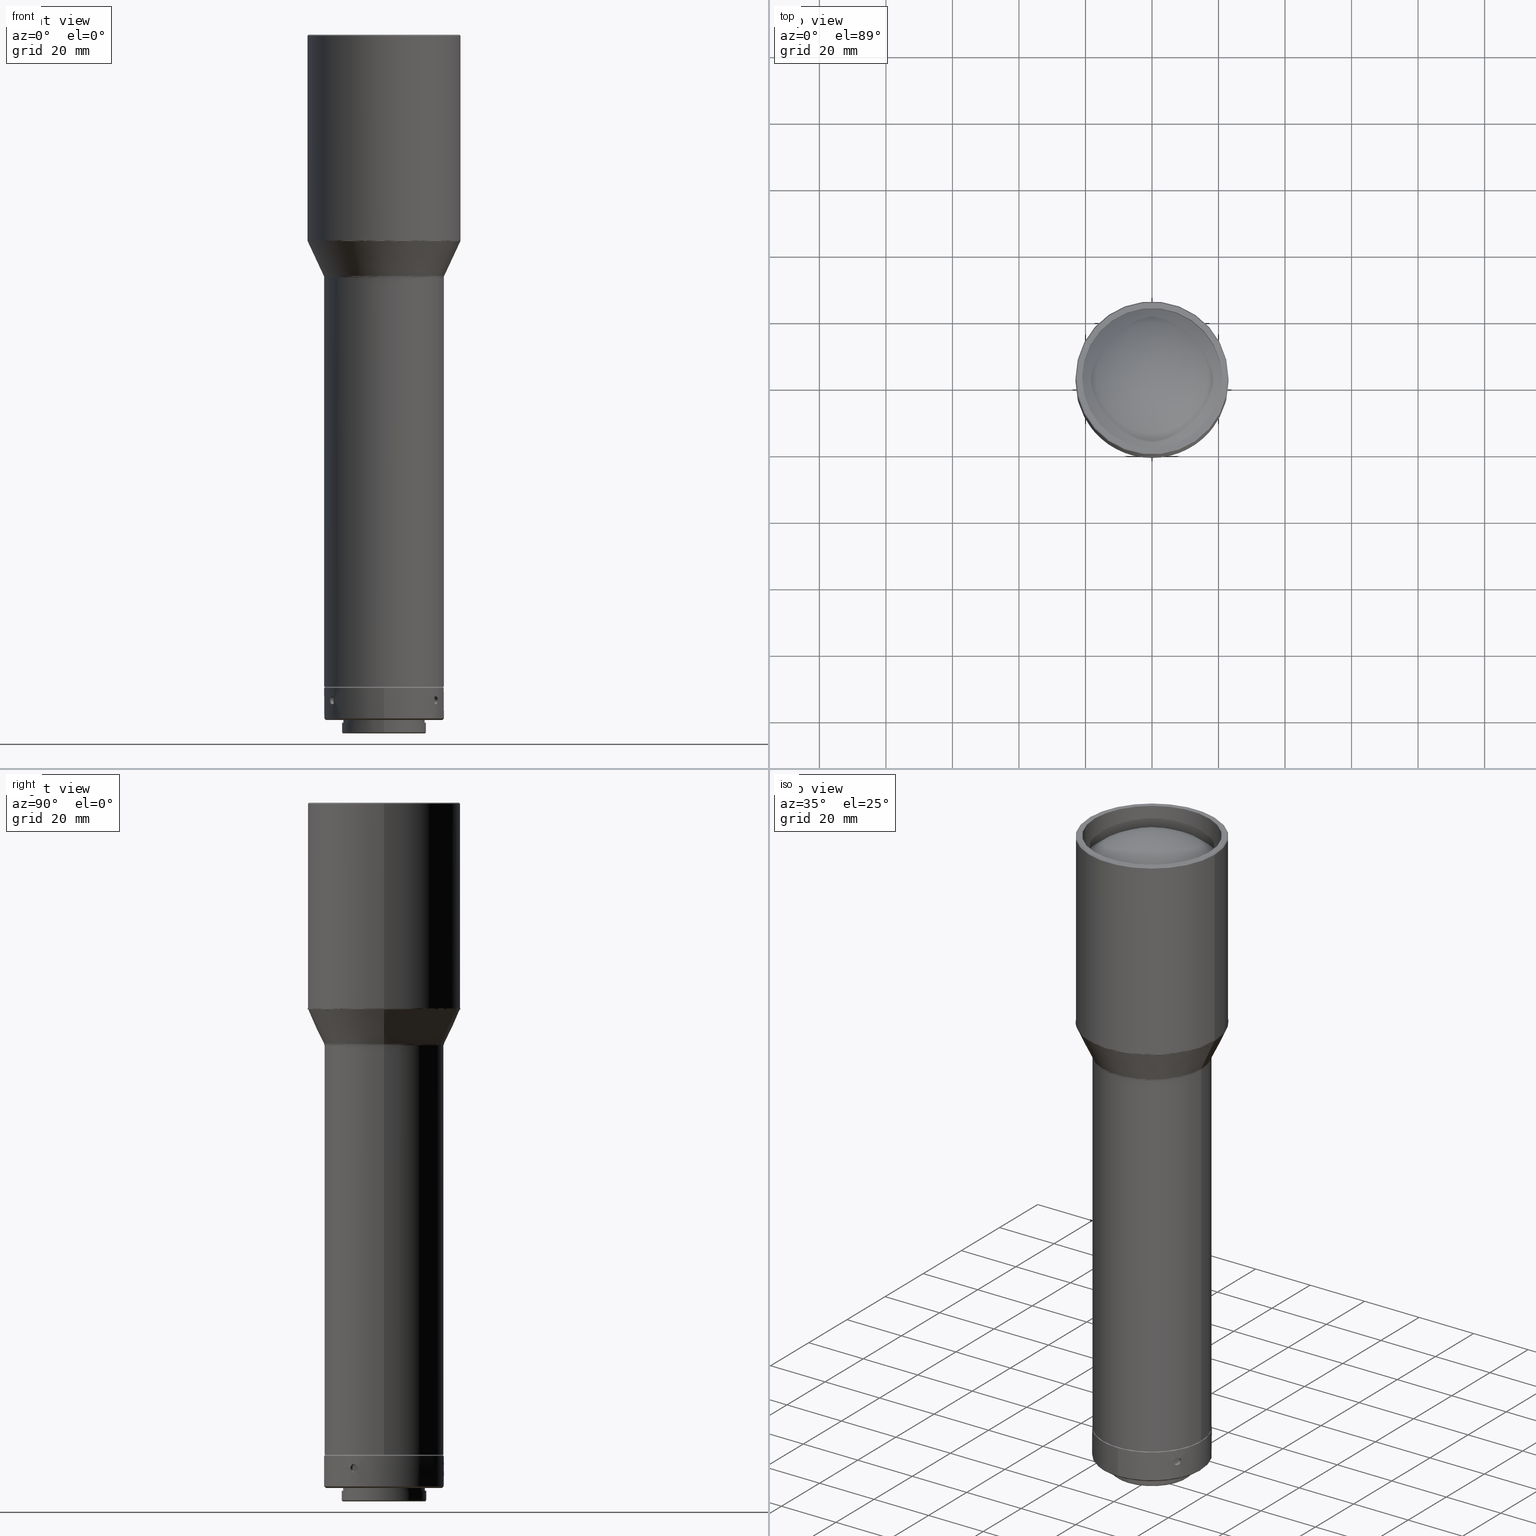
[diagram: canonical four-view strip — front | top / right | iso, engineering-drawing reading convention]
A machine part, canonical four-view strip (front | top / right | iso — engineering-drawing reading convention). The complete STEP part file that produces these views, byte-faithful:
ISO-10303-21;
HEADER;
FILE_DESCRIPTION (( 'STEP AP203' ),
    '1' );
FILE_NAME ('600082.STEP',
    '2024-08-14T02:16:43',
    ( 'Windows User' ),
    ( 'P R C' ),
    'SwSTEP 2.0',
    'SolidWorks 2020',
    '' );
FILE_SCHEMA (( 'CONFIG_CONTROL_DESIGN' ));
ENDSEC;

DATA;
#1 = CARTESIAN_POINT ( 'NONE',  ( -14.48557545538662161, -8.742522306900646356, -730.8620186516478725 ) ) ;
#2 = CARTESIAN_POINT ( 'NONE',  ( -1.606064465465462856E-14, -12.29999999999998472, -738.8790300000002844 ) ) ;
#3 = CARTESIAN_POINT ( 'NONE',  ( -14.81289214844620439, -8.175702872325851800, -730.8612463828524142 ) ) ;
#4 = CARTESIAN_POINT ( 'NONE',  ( 15.22283408307267649, -7.383104952799163456, -731.7517176856180185 ) ) ;
#5 = CARTESIAN_POINT ( 'NONE',  ( 15.89389229175796814, -8.450273022655000688, -730.9863543457099695 ) ) ;
#6 = ADVANCED_FACE ( 'NONE', ( #807, #318, #625, #48, #584 ), #824, .T. ) ;
#7 = CARTESIAN_POINT ( 'NONE',  ( 14.12718988083657479, -9.310037096955088742, -732.8476679122799169 ) ) ;
#8 = CIRCLE ( 'NONE', #114, 23.00000000000000000 ) ;
#9 = CARTESIAN_POINT ( 'NONE',  ( -16.10583412538212400, -8.037789467238036778, -731.4490236262734015 ) ) ;
#10 = CARTESIAN_POINT ( 'NONE',  ( 1.250000332568551586, 16.87241715804172415, -731.9138266259060401 ) ) ;
#11 = CC_DESIGN_DATE_AND_TIME_ASSIGNMENT ( #544, #774, ( #812 ) ) ;
#12 = PERSON_AND_ORGANIZATION_ROLE ( 'classification_officer' ) ;
#13 = CARTESIAN_POINT ( 'NONE',  ( -15.42341458922626529, -9.281228838265851877, -730.8612451631306612 ) ) ;
#14 = APPROVAL_DATE_TIME ( #75, #22 ) ;
#15 = EDGE_LOOP ( 'NONE', ( #679 ) ) ;
#16 = FACE_BOUND ( 'NONE', #528, .T. ) ;
#17 = ADVANCED_FACE ( 'NONE', ( #578, #448 ), #697, .F. ) ;
#18 = CONICAL_SURFACE ( 'NONE', #497, 22.90630778703662429, 0.4363323129985753890 ) ;
#19 = CARTESIAN_POINT ( 'NONE',  ( 14.81289195028904260, -8.175703228214926455, -733.2968136970555406 ) ) ;
#20 = DIRECTION ( 'NONE',  ( -1.540743955509788956E-32, -6.938893903907246867E-17, 1.000000000000000000 ) ) ;
#21 = AXIS2_PLACEMENT_3D ( 'NONE', #798, #500, #622 ) ;
#22 = APPROVAL ( #660, 'δָ��' ) ;
#23 = AXIS2_PLACEMENT_3D ( 'NONE', #583, #453, #643 ) ;
#24 = CYLINDRICAL_SURFACE ( 'NONE', #365, 16.91865720399824724 ) ;
#25 = CARTESIAN_POINT ( 'NONE',  ( -0.1639492055053478337, 16.91864883214752169, -730.8291433124057903 ) ) ;
#26 = DIRECTION ( 'NONE',  ( -1.110223024625161717E-16, 1.387778780781447216E-17, -1.000000000000000000 ) ) ;
#27 = CARTESIAN_POINT ( 'NONE',  ( -15.89389197149333022, -8.450273622267824081, -733.1717060156610160 ) ) ;
#28 =( GEOMETRIC_REPRESENTATION_CONTEXT ( 3 ) GLOBAL_UNCERTAINTY_ASSIGNED_CONTEXT ( ( #481 ) ) GLOBAL_UNIT_ASSIGNED_CONTEXT ( ( #647, #519, #111 ) ) REPRESENTATION_CONTEXT ( 'NONE', 'WORKASPACE' ) );
#29 = CIRCLE ( 'NONE', #638, 12.29999999999998828 ) ;
#30 = CARTESIAN_POINT ( 'NONE',  ( 15.23694190345006483, -7.353676836609639444, -732.0790300000002162 ) ) ;
#31 = CARTESIAN_POINT ( 'NONE',  ( -15.42218430790377326, -9.283256999105446994, -733.2960453772540177 ) ) ;
#32 = CARTESIAN_POINT ( 'NONE',  ( 14.48681245545073892, -8.740489467910489196, -730.8612463828524142 ) ) ;
#33 = CARTESIAN_POINT ( 'NONE',  ( 4.600448513594326693E-15, 2.912732588834946147E-14, -532.0000000000001137 ) ) ;
#34 = EDGE_LOOP ( 'NONE', ( #84 ) ) ;
#35 = APPLICATION_CONTEXT ( 'configuration controlled 3d designs of mechanical parts and assemblies' ) ;
#36 = VERTEX_POINT ( 'NONE', #300 ) ;
#37 = CARTESIAN_POINT ( 'NONE',  ( 14.00537381640226897, -9.491808075640536302, -732.4063443552998933 ) ) ;
#38 = FACE_BOUND ( 'NONE', #367, .T. ) ;
#39 = EDGE_LOOP ( 'NONE', ( #621 ) ) ;
#40 = CARTESIAN_POINT ( 'NONE',  ( -15.01384736159115185, -9.929166118684825904, -732.7090376652779469 ) ) ;
#41 = ADVANCED_FACE ( 'NONE', ( #741, #171 ), #598, .F. ) ;
#42 = FACE_BOUND ( 'NONE', #216, .T. ) ;
#43 = CARTESIAN_POINT ( 'NONE',  ( -16.17582393315549183, -7.895740629197098848, -732.2442292392654508 ) ) ;
#44 = CC_DESIGN_PERSON_AND_ORGANIZATION_ASSIGNMENT ( #445, #250, ( #777 ) ) ;
#45 = CARTESIAN_POINT ( 'NONE',  ( 18.03173219073663702, -36.06346438147326694, -604.6544846999104266 ) ) ;
#46 = CARTESIAN_POINT ( 'NONE',  ( 1.091755923036179521, 17.96697055881273997, -732.7094559346066944 ) ) ;
#47 = CARTESIAN_POINT ( 'NONE',  ( -23.00000000000000355, 3.509169801422339781E-14, -593.7783053373572102 ) ) ;
#48 = FACE_BOUND ( 'NONE', #356, .T. ) ;
#49 = DIRECTION ( 'NONE',  ( -1.000000000000000000, 0.000000000000000000, 7.576256000692356101E-16 ) ) ;
#50 = CARTESIAN_POINT ( 'NONE',  ( -1.250000303081713948, 17.95654474675725609, -731.9138332969531575 ) ) ;
#51 = DIRECTION ( 'NONE',  ( 0.000000000000000000, 0.000000000000000000, 1.000000000000000000 ) ) ;
#52 = DIRECTION ( 'NONE',  ( 0.000000000000000000, -1.000000000000000000, 0.000000000000000000 ) ) ;
#53 = EDGE_LOOP ( 'NONE', ( #773 ) ) ;
#54 = CARTESIAN_POINT ( 'NONE',  ( 22.90630778703662429, -45.81261557407324858, -594.2009235990979050 ) ) ;
#55 = CARTESIAN_POINT ( 'NONE',  ( 15.19139366244525036, -9.655838794076609943, -733.0801266175251385 ) ) ;
#56 = EDGE_CURVE ( 'NONE', #686, #686, #523, .T. ) ;
#57 = APPLICATION_PROTOCOL_DEFINITION ( 'international standard', 'config_control_design', 1994, #35 ) ;
#58 = CARTESIAN_POINT ( 'NONE',  ( -14.00541876084532333, -9.491742252443744476, -732.4066734003895363 ) ) ;
#59 = EDGE_LOOP ( 'NONE', ( #551 ) ) ;
#60 = AXIS2_PLACEMENT_3D ( 'NONE', #252, #305, #813 ) ;
#61 = CARTESIAN_POINT ( 'NONE',  ( 22.96826780926333811, -45.93653561852667622, -594.0680499026377674 ) ) ;
#62 = CARTESIAN_POINT ( 'NONE',  ( 0.7665048592950598483, 17.98405222760582589, -733.0801266175249111 ) ) ;
#63 = CARTESIAN_POINT ( 'NONE',  ( 18.00000000000000000, 3.013963042389634666E-14, -604.9442292651910975 ) ) ;
#64 = ORIENTED_EDGE ( 'NONE', *, *, #477, .T. ) ;
#65 = SPHERICAL_SURFACE ( 'NONE', #550, 31.20951493132240273 ) ;
#66 = AXIS2_PLACEMENT_3D ( 'NONE', #275, #20, #336 ) ;
#67 = CARTESIAN_POINT ( 'NONE',  ( -0.3260792857080592189, 16.91619234657179405, -733.2968136970555406 ) ) ;
#68 = CARTESIAN_POINT ( 'NONE',  ( -18.03173219073665834, 3.413945826070702122E-14, -604.6544846999105403 ) ) ;
#69 = CARTESIAN_POINT ( 'NONE',  ( -14.07554716524871807, -9.387432463867062538, -731.4490139255768781 ) ) ;
#70 = EDGE_LOOP ( 'NONE', ( #64 ) ) ;
#71 = CARTESIAN_POINT ( 'NONE',  ( -15.22279954154067205, -7.383176806200604680, -731.7513885890218717 ) ) ;
#72 = ADVANCED_FACE ( 'NONE', ( #38, #492 ), #103, .F. ) ;
#73 = CARTESIAN_POINT ( 'NONE',  ( 0.7665073511361621961, 16.90168917566750295, -731.0779348233165820 ) ) ;
#74 = ORIENTED_EDGE ( 'NONE', *, *, #119, .T. ) ;
#75 = DATE_AND_TIME ( #478, #498 ) ;
#76 = PLANE ( 'NONE',  #429 ) ;
#77 = CC_DESIGN_PERSON_AND_ORGANIZATION_ASSIGNMENT ( #214, #12, ( #812 ) ) ;
#78 = CARTESIAN_POINT ( 'NONE',  ( -0.6288092642212592676, 16.90764590698573144, -733.1716981758939937 ) ) ;
#79 = EDGE_LOOP ( 'NONE', ( #262 ) ) ;
#80 = CARTESIAN_POINT ( 'NONE',  ( -15.67042028344147298, -8.858020202463199766, -730.8291429727667037 ) ) ;
#81 = ORIENTED_EDGE ( 'NONE', *, *, #212, .T. ) ;
#82 = EDGE_CURVE ( 'NONE', #101, #101, #784, .T. ) ;
#83 = DIRECTION ( 'NONE',  ( -1.000000000000000000, 2.220446049250315053E-16, 0.000000000000000000 ) ) ;
#84 = ORIENTED_EDGE ( 'NONE', *, *, #420, .F. ) ;
#85 = CARTESIAN_POINT ( 'NONE',  ( 14.73310243034945088, -8.318849100496221283, -733.3291427119962691 ) ) ;
#86 = PRODUCT_RELATED_PRODUCT_CATEGORY ( 'detail', '', ( #777 ) ) ;
#87 = DIRECTION ( 'NONE',  ( 0.000000000000000000, 0.000000000000000000, -1.000000000000000000 ) ) ;
#88 = DIRECTION ( 'NONE',  ( -1.000000000000000000, 0.000000000000000000, 0.000000000000000000 ) ) ;
#89 = CARTESIAN_POINT ( 'NONE',  ( -1.091981407395437476, 16.88349764920496554, -731.4490139255771055 ) ) ;
#90 = CARTESIAN_POINT ( 'NONE',  ( 15.23694190345006838, -7.353676836609641221, -732.2442361569746936 ) ) ;
#91 = DIRECTION ( 'NONE',  ( 0.000000000000000000, -1.000000000000000000, -6.938893903907246867E-17 ) ) ;
#92 = CARTESIAN_POINT ( 'NONE',  ( -18.09369221296337216, -36.18738442592668747, -604.5216110034504027 ) ) ;
#93 = EDGE_CURVE ( 'NONE', #36, #36, #739, .T. ) ;
#94 = FACE_OUTER_BOUND ( 'NONE', #674, .T. ) ;
#95 = ORIENTED_EDGE ( 'NONE', *, *, #787, .F. ) ;
#96 = VERTEX_POINT ( 'NONE', #167 ) ;
#97 = CARTESIAN_POINT ( 'NONE',  ( 14.57088576296201232, -8.599816610266934447, -730.8289172878609179 ) ) ;
#98 = ADVANCED_BREP_SHAPE_REPRESENTATION ( '600082', ( #150, #434, #351 ), #28 ) ;
#99 = DIRECTION ( 'NONE',  ( 0.000000000000000000, -0.000000000000000000, 1.000000000000000000 ) ) ;
#100 = EDGE_LOOP ( 'NONE', ( #117 ) ) ;
#101 = VERTEX_POINT ( 'NONE', #618 ) ;
#102 = AXIS2_PLACEMENT_3D ( 'NONE', #159, #736, #233 ) ;
#103 = PLANE ( 'NONE',  #819 ) ;
#104 = CIRCLE ( 'NONE', #608, 12.69999999999998685 ) ;
#105 = CARTESIAN_POINT ( 'NONE',  ( -14.92582410297037931, -10.06080388672737591, -732.2442312896946532 ) ) ;
#106 = CARTESIAN_POINT ( 'NONE',  ( -7.473226879204271194E-15, 21.75000000000004974, -532.0000000000001137 ) ) ;
#107 = ORIENTED_EDGE ( 'NONE', *, *, #337, .T. ) ;
#108 = AXIS2_PLACEMENT_3D ( 'NONE', #624, #557, #555 ) ;
#109 = CARTESIAN_POINT ( 'NONE',  ( -22.90630778703663850, 3.507675917037153633E-14, -594.2009235990979050 ) ) ;
#110 = CARTESIAN_POINT ( 'NONE',  ( -1.217386932848452119, 17.95889559784532707, -731.7514067959092472 ) ) ;
#111 =( NAMED_UNIT ( * ) SI_UNIT ( $, .STERADIAN. ) SOLID_ANGLE_UNIT ( ) );
#112 = ORIENTED_EDGE ( 'NONE', *, *, #82, .T. ) ;
#113 = CARTESIAN_POINT ( 'NONE',  ( -23.00000000000001421, -45.99999999999995737, -593.7783053373573239 ) ) ;
#114 = AXIS2_PLACEMENT_3D ( 'NONE', #388, #644, #772 ) ;
#115 = CARTESIAN_POINT ( 'NONE',  ( 1.217464335294298206, 17.95889008224764183, -731.7517309706282731 ) ) ;
#116 = VERTEX_POINT ( 'NONE', #709 ) ;
#117 = ORIENTED_EDGE ( 'NONE', *, *, #726, .T. ) ;
#118 = CARTESIAN_POINT ( 'NONE',  ( -14.32804624153109074, -8.998387750443329836, -733.1716981758939937 ) ) ;
#119 = EDGE_CURVE ( 'NONE', #494, #494, #476, .T. ) ;
#120 = CARTESIAN_POINT ( 'NONE',  ( 17.99999999999999645, 2.614282753524578312E-14, -604.9442292651910975 ) ) ;
#121 = CARTESIAN_POINT ( 'NONE',  ( -1.091986416381339753, 17.96695628302230574, -732.7090376652781742 ) ) ;
#122 = APPLICATION_PROTOCOL_DEFINITION ( 'international standard', 'config_control_design', 1994, #493 ) ;
#123 = ORIENTED_EDGE ( 'NONE', *, *, #366, .T. ) ;
#124 = CARTESIAN_POINT ( 'NONE',  ( -14.25403896938366799, -9.114658718657873138, -733.0801257797372728 ) ) ;
#125 = CARTESIAN_POINT ( 'NONE',  ( 0.000000000000000000, 0.000000000000000000, -541.0000000000001137 ) ) ;
#126 = CARTESIAN_POINT ( 'NONE',  ( -22.96826780926334877, 3.508867306606329942E-14, -594.0680499026378811 ) ) ;
#127 = CARTESIAN_POINT ( 'NONE',  ( -0.6287950393457226728, 17.98965100100357972, -730.9863543457100832 ) ) ;
#128 = ORIENTED_EDGE ( 'NONE', *, *, #283, .F. ) ;
#129 = CARTESIAN_POINT ( 'NONE',  ( -15.02054586856467822, -7.787029749562156766, -731.0779348233161272 ) ) ;
#130 = CARTESIAN_POINT ( 'NONE',  ( 0.1639489985067944244, 16.91864883215810167, -733.3289166877383423 ) ) ;
#131 = AXIS2_PLACEMENT_3D ( 'NONE', #767, #540, #197 ) ;
#132 = FACE_OUTER_BOUND ( 'NONE', #473, .T. ) ;
#133 = CARTESIAN_POINT ( 'NONE',  ( -13.98694190345021049, -9.518740346070499569, -731.9138238430258525 ) ) ;
#134 = CARTESIAN_POINT ( 'NONE',  ( -16.17582393315550959, -7.895740629197073090, -732.0790300000005573 ) ) ;
#135 = ADVANCED_FACE ( 'NONE', ( #673, #669 ), #581, .T. ) ;
#136 = EDGE_LOOP ( 'NONE', ( #162 ) ) ;
#137 = CARTESIAN_POINT ( 'NONE',  ( -14.12671243415179845, -9.310780112380221851, -732.8469448488299349 ) ) ;
#138 = CIRCLE ( 'NONE', #23, 17.99999999999998579 ) ;
#139 = CARTESIAN_POINT ( 'NONE',  ( 0.3260796929953380663, 16.91619234023640672, -730.8612463828524142 ) ) ;
#140 = CARTESIAN_POINT ( 'NONE',  ( 13.98694209107476105, -9.518740070372929907, -732.2442384067710464 ) ) ;
#141 = DIRECTION ( 'NONE',  ( -1.848892746611746419E-32, 1.318609258053556101E-16, 1.000000000000000000 ) ) ;
#142 = CC_DESIGN_APPROVAL ( #707, ( #717 ) ) ;
#143 = DIRECTION ( 'NONE',  ( 1.000000000000000000, -2.220446049250314067E-16, 0.000000000000000000 ) ) ;
#144 = EDGE_LOOP ( 'NONE', ( #593 ) ) ;
#145 = CARTESIAN_POINT ( 'NONE',  ( -2.258321187191454181E-15, 2.998467210094767141E-14, -593.7783053373572102 ) ) ;
#146 = CARTESIAN_POINT ( 'NONE',  ( 0.6288100096973399111, 16.90764588077717789, -730.9863622206262335 ) ) ;
#147 = EDGE_LOOP ( 'NONE', ( #755 ) ) ;
#148 = DIRECTION ( 'NONE',  ( 1.110223024625165169E-16, -1.387778780781447216E-17, 1.000000000000000000 ) ) ;
#149 = PERSON_AND_ORGANIZATION ( #568, #192 ) ;
#150 = MANIFOLD_SOLID_BREP ( '��ת1', #722 ) ;
#151 = DIRECTION ( 'NONE',  ( 0.000000000000000000, 0.000000000000000000, 1.000000000000000000 ) ) ;
#152 = CARTESIAN_POINT ( 'NONE',  ( 15.12672832344813223, -7.578701783742792131, -732.8469448488299349 ) ) ;
#153 = DIRECTION ( 'NONE',  ( -1.110223024625165169E-16, 1.387778780781447216E-17, -1.000000000000000000 ) ) ;
#154 =( BOUNDED_SURFACE ( )  B_SPLINE_SURFACE ( 3, 3, ( 
 ( #585, #752, #443, #175, #820, #693, #120 ),
 ( #635, #579, #253, #433, #368, #185, #640 ),
 ( #594, #525, #389, #68, #831, #45, #569 ),
 ( #808, #747, #438, #207, #92, #203, #330 ) ),
 .UNSPECIFIED., .F., .T., .F. ) 
 B_SPLINE_SURFACE_WITH_KNOTS ( ( 4, 4 ),
 ( 4, 3, 4 ),
 ( 0.000000000000000000, 1.000000000000000000 ),
 ( 0.000000000000000000, 0.5000000000000000000, 1.000000000000000000 ),
 .UNSPECIFIED. ) 
 GEOMETRIC_REPRESENTATION_ITEM ( )  RATIONAL_B_SPLINE_SURFACE ( (
 ( 1.000000000000000000, 0.3333333333333333148, 0.3333333333333333148, 1.000000000000000000, 0.3333333333333333148, 0.3333333333333333148, 1.000000000000000000),
 ( 0.9841973380799534654, 0.3280657793599844885, 0.3280657793599844885, 0.9841973380799534654, 0.3280657793599844885, 0.3280657793599844885, 0.9841973380799534654),
 ( 0.9841973380799534654, 0.3280657793599844885, 0.3280657793599844885, 0.9841973380799534654, 0.3280657793599844885, 0.3280657793599844885, 0.9841973380799534654),
 ( 1.000000000000000000, 0.3333333333333333148, 0.3333333333333333148, 1.000000000000000000, 0.3333333333333333148, 0.3333333333333333148, 1.000000000000000000) ) ) 
 REPRESENTATION_ITEM ( '' )  SURFACE ( )  );
#155 = EDGE_LOOP ( 'NONE', ( #623 ) ) ;
#156 = CARTESIAN_POINT ( 'NONE',  ( 0.000000000000000000, 0.000000000000000000, -541.0000000000001137 ) ) ;
#157 = EDGE_CURVE ( 'NONE', #734, #734, #546, .T. ) ;
#158 = CARTESIAN_POINT ( 'NONE',  ( -1.217460593605657504, 16.87491350993611761, -731.7517176856181322 ) ) ;
#159 = CARTESIAN_POINT ( 'NONE',  ( -1.606064465465462856E-14, 2.908855331242725076E-15, -738.8790300000002844 ) ) ;
#160 = CARTESIAN_POINT ( 'NONE',  ( -16.06471677035730394, -8.120254879791541924, -732.8469501707627387 ) ) ;
#161 = DIRECTION ( 'NONE',  ( 0.000000000000000000, -0.000000000000000000, 1.000000000000000000 ) ) ;
#162 = ORIENTED_EDGE ( 'NONE', *, *, #218, .T. ) ;
#163 = CARTESIAN_POINT ( 'NONE',  ( -1.647987302177966740E-14, -12.39999999999999325, -742.0790300000003299 ) ) ;
#164 = ADVANCED_FACE ( 'NONE', ( #554, #616 ), #288, .T. ) ;
#165 = DIRECTION ( 'NONE',  ( 0.000000000000000000, 0.000000000000000000, 1.000000000000000000 ) ) ;
#166 = ORIENTED_EDGE ( 'NONE', *, *, #726, .F. ) ;
#167 = CARTESIAN_POINT ( 'NONE',  ( -22.70000000000002416, 2.913148922469180202E-14, -532.0000000000001137 ) ) ;
#168 = AXIS2_PLACEMENT_3D ( 'NONE', #353, #345, #610 ) ;
#169 = FACE_OUTER_BOUND ( 'NONE', #566, .T. ) ;
#170 = CARTESIAN_POINT ( 'NONE',  ( -16.16155305345584026, -7.925160248036697830, -732.4066550172560710 ) ) ;
#171 = FACE_OUTER_BOUND ( 'NONE', #311, .T. ) ;
#172 = CARTESIAN_POINT ( 'NONE',  ( -22.99999999999999289, 46.00000000000003553, -593.7783053373573239 ) ) ;
#173 = CARTESIAN_POINT ( 'NONE',  ( -1.091756721072190350, 17.96697050981528676, -731.4486054048880987 ) ) ;
#174 = CARTESIAN_POINT ( 'NONE',  ( 22.90630778703662784, 2.490431504464409916E-14, -594.2009235990979050 ) ) ;
#175 = CARTESIAN_POINT ( 'NONE',  ( -18.00000000000000355, 3.413643331254691021E-14, -604.9442292651910975 ) ) ;
#176 = CARTESIAN_POINT ( 'NONE',  ( 15.89407479287068981, -8.449912178065833501, -733.1713261720311721 ) ) ;
#177 = COORDINATED_UNIVERSAL_TIME_OFFSET ( 8, 0, .AHEAD. ) ;
#178 = ADVANCED_FACE ( 'NONE', ( #425, #169 ), #359, .F. ) ;
#179 = CARTESIAN_POINT ( 'NONE',  ( -1.606064465465462856E-14, 2.159454789620740073E-15, -728.0790300000003299 ) ) ;
#180 = CARTESIAN_POINT ( 'NONE',  ( 22.96826780926335942, 45.93653561852671885, -594.0680499026377674 ) ) ;
#181 = CARTESIAN_POINT ( 'NONE',  ( 16.17582406642456405, -7.895740356171740082, -731.9138332969530438 ) ) ;
#182 = VERTEX_POINT ( 'NONE', #134 ) ;
#183 = EDGE_LOOP ( 'NONE', ( #688 ) ) ;
#184 = CYLINDRICAL_SURFACE ( 'NONE', #503, 12.29999999999998828 ) ;
#185 = CARTESIAN_POINT ( 'NONE',  ( 17.99999999999998579, -35.99999999999997158, -604.7976193625061114 ) ) ;
#186 = CARTESIAN_POINT ( 'NONE',  ( -1.249999696914090741, 17.95654478895409412, -732.2442312896945396 ) ) ;
#187 = PERSON_AND_ORGANIZATION ( #568, #192 ) ;
#188 = EDGE_LOOP ( 'NONE', ( #737 ) ) ;
#189 = CARTESIAN_POINT ( 'NONE',  ( -15.23694175850124033, -7.353677136946057402, -732.2442384067710464 ) ) ;
#190 = CARTESIAN_POINT ( 'NONE',  ( 15.74948724688810309, -8.716454428236477980, -730.8612451631305476 ) ) ;
#191 = CARTESIAN_POINT ( 'NONE',  ( 22.99999999999998934, 2.487968080879193158E-14, -593.9249152400421963 ) ) ;
#192 = ORGANIZATION ( 'δָ��', 'δָ��', '' ) ;
#193 = ADVANCED_FACE ( 'NONE', ( #94, #348 ), #792, .T. ) ;
#194 = DIRECTION ( 'NONE',  ( 0.000000000000000000, 1.156047258199701352E-16, 1.000000000000000000 ) ) ;
#195 = DIRECTION ( 'NONE',  ( 1.000000000000000000, 0.000000000000000000, 0.000000000000000000 ) ) ;
#196 = DIRECTION ( 'NONE',  ( 1.540743955509788682E-32, 6.938893903907246867E-17, -1.000000000000000000 ) ) ;
#197 = DIRECTION ( 'NONE',  ( -0.4999999999999921174, 0.8660254037844431485, 0.000000000000000000 ) ) ;
#198 = CARTESIAN_POINT ( 'NONE',  ( -1.091752412007670703, 16.88351273652315143, -732.7094602015467899 ) ) ;
#199 = CARTESIAN_POINT ( 'NONE',  ( -14.73310253385957935, -8.318848921232580906, -730.8289172878609179 ) ) ;
#200 = CC_DESIGN_PERSON_AND_ORGANIZATION_ASSIGNMENT ( #754, #770, ( #385 ) ) ;
#201 = APPROVAL_DATE_TIME ( #386, #707 ) ;
#202 = DIRECTION ( 'NONE',  ( 4.665676044949140993E-17, 1.934749774458438248E-17, 1.000000000000000000 ) ) ;
#203 = CARTESIAN_POINT ( 'NONE',  ( 18.09369221296335084, -36.18738442592668747, -604.5216110034504027 ) ) ;
#204 = EDGE_LOOP ( 'NONE', ( #128 ) ) ;
#205 = CARTESIAN_POINT ( 'NONE',  ( -1.734723475976807094E-15, 2.999053710750781774E-14, -594.2009235990979050 ) ) ;
#206 = CARTESIAN_POINT ( 'NONE',  ( 15.16752857264401300, -7.496065185337840830, -731.4490139255768781 ) ) ;
#207 = CARTESIAN_POINT ( 'NONE',  ( -18.09369221296336505, 3.415137215639877169E-14, -604.5216110034504027 ) ) ;
#208 = EDGE_LOOP ( 'NONE', ( #95 ) ) ;
#209 = AXIS2_PLACEMENT_3D ( 'NONE', #415, #148, #789 ) ;
#210 = CC_DESIGN_APPROVAL ( #22, ( #812 ) ) ;
#211 = FACE_OUTER_BOUND ( 'NONE', #572, .T. ) ;
#212 = EDGE_CURVE ( 'NONE', #797, #797, #281, .T. ) ;
#213 = CARTESIAN_POINT ( 'NONE',  ( 14.48557566740572788, -8.742521952847537747, -733.2960414320709788 ) ) ;
#214 = PERSON_AND_ORGANIZATION ( #568, #192 ) ;
#215 = CARTESIAN_POINT ( 'NONE',  ( -15.26509725241258941, -9.539377978348534626, -730.9863543457101969 ) ) ;
#216 = EDGE_LOOP ( 'NONE', ( #374 ) ) ;
#217 = DIRECTION ( 'NONE',  ( 0.000000000000000000, -0.000000000000000000, 1.000000000000000000 ) ) ;
#218 = EDGE_CURVE ( 'NONE', #346, #346, #629, .T. ) ;
#219 = B_SPLINE_CURVE_WITH_KNOTS ( 'NONE', 3,
 ( #706, #133, #646, #69, #769, #463, #268, #1, #533, #199, #3, #263, #129, #393, #651, #71, #761, #189, #756, #590, #447, #381, #510, #310, #529, #467, #703, #118, #124, #137, #766, #58, #823, #441 ),
 .UNSPECIFIED., .T., .F.,
 ( 4, 2, 2, 2, 2, 2, 2, 2, 2, 2, 2, 2, 2, 2, 2, 2, 4 ),
 ( 0.000000000000000000, 0.0004885708810192688437, 0.0009771417620385376875, 0.001465712643057806531, 0.001954283524077075375, 0.002442854405096344002, 0.002931425286115613062, 0.003419996167134882123, 0.003908567048154150750, 0.004397137929173419377, 0.004885708810192688004, 0.005374279691211957498, 0.005862850572231226125, 0.006351421453250494752, 0.006839992334269764246, 0.007328563215289032873, 0.007817134096308301500 ),
 .UNSPECIFIED. ) ;
#220 = FACE_OUTER_BOUND ( 'NONE', #803, .T. ) ;
#221 = CARTESIAN_POINT ( 'NONE',  ( -1.000015889296476779, 16.88948189612306905, -732.8469448488299349 ) ) ;
#222 = DIRECTION ( 'NONE',  ( -0.5000000000000044409, -0.8660254037844359321, 0.000000000000000000 ) ) ;
#223 = CC_DESIGN_PERSON_AND_ORGANIZATION_ASSIGNMENT ( #321, #464, ( #717 ) ) ;
#224 = CARTESIAN_POINT ( 'NONE',  ( -1.250000000000004441, 16.87241718268019852, -732.0790300000003299 ) ) ;
#225 = CONICAL_SURFACE ( 'NONE', #372, 22.99999999999999289, 0.7853981633974482790 ) ;
#226 = DIRECTION ( 'NONE',  ( -1.110223024625156294E-16, -1.000000000000000000, -6.938893903907248099E-17 ) ) ;
#227 = CARTESIAN_POINT ( 'NONE',  ( -15.26487600238792020, -9.539716451242940209, -733.1713261720310584 ) ) ;
#228 = ADVANCED_FACE ( 'NONE', ( #613, #42 ), #225, .T. ) ;
#229 = DIRECTION ( 'NONE',  ( 1.000000000000000000, 0.000000000000000000, 0.000000000000000000 ) ) ;
#230 = ORIENTED_EDGE ( 'NONE', *, *, #56, .F. ) ;
#231 = VERTEX_POINT ( 'NONE', #615 ) ;
#232 = APPROVAL ( #765, 'δָ��' ) ;
#233 = DIRECTION ( 'NONE',  ( 0.000000000000000000, -1.000000000000000000, 0.000000000000000000 ) ) ;
#234 = AXIS2_PLACEMENT_3D ( 'NONE', #677, #165, #558 ) ;
#235 = DIRECTION ( 'NONE',  ( 1.000000000000000000, 0.000000000000000000, 0.000000000000000000 ) ) ;
#236 = CYLINDRICAL_SURFACE ( 'NONE', #802, 1.249999999999990230 ) ;
#237 = CARTESIAN_POINT ( 'NONE',  ( 14.92582393315538702, -10.06080413865835688, -732.2442292392659056 ) ) ;
#238 = CIRCLE ( 'NONE', #713, 23.00000000000000000 ) ;
#239 = VERTEX_POINT ( 'NONE', #423 ) ;
#240 = FACE_OUTER_BOUND ( 'NONE', #428, .T. ) ;
#241 = CYLINDRICAL_SURFACE ( 'NONE', #681, 16.91865720399824724 ) ;
#242 = CC_DESIGN_APPROVAL ( #232, ( #385 ) ) ;
#243 = ORIENTED_EDGE ( 'NONE', *, *, #218, .F. ) ;
#244 = CARTESIAN_POINT ( 'NONE',  ( -1.606064465465462856E-14, 3.110083254456035883E-15, -741.7790300000003754 ) ) ;
#245 =( BOUNDED_SURFACE ( )  B_SPLINE_SURFACE ( 3, 3, ( 
 ( #109, #506, #450, #645, #54, #302, #306 ),
 ( #126, #246, #180, #626, #61, #324, #260 ),
 ( #573, #763, #826, #191, #531, #814, #319 ),
 ( #382, #172, #376, #758, #512, #113, #456 ) ),
 .UNSPECIFIED., .F., .T., .F. ) 
 B_SPLINE_SURFACE_WITH_KNOTS ( ( 4, 4 ),
 ( 4, 3, 4 ),
 ( 0.000000000000000000, 1.000000000000000000 ),
 ( 0.000000000000000000, 0.5000000000000000000, 1.000000000000000000 ),
 .UNSPECIFIED. ) 
 GEOMETRIC_REPRESENTATION_ITEM ( )  RATIONAL_B_SPLINE_SURFACE ( (
 ( 1.000000000000000000, 0.3333333333333333148, 0.3333333333333333148, 1.000000000000000000, 0.3333333333333333148, 0.3333333333333333148, 1.000000000000000000),
 ( 0.9841973380799533544, 0.3280657793599844330, 0.3280657793599844330, 0.9841973380799533544, 0.3280657793599844330, 0.3280657793599844330, 0.9841973380799533544),
 ( 0.9841973380799533544, 0.3280657793599844330, 0.3280657793599844330, 0.9841973380799533544, 0.3280657793599844330, 0.3280657793599844330, 0.9841973380799533544),
 ( 1.000000000000000000, 0.3333333333333333148, 0.3333333333333333148, 1.000000000000000000, 0.3333333333333333148, 0.3333333333333333148, 1.000000000000000000) ) ) 
 REPRESENTATION_ITEM ( '' )  SURFACE ( )  );
#246 = CARTESIAN_POINT ( 'NONE',  ( -22.96826780926333811, 45.93653561852671885, -594.0680499026377674 ) ) ;
#247 = AXIS2_PLACEMENT_3D ( 'NONE', #661, #607, #284 ) ;
#248 = APPROVAL_PERSON_ORGANIZATION ( #149, #22, #401 ) ;
#249 = CARTESIAN_POINT ( 'NONE',  ( 1.249999999999976241, 17.95654476785551878, -731.9138307607348679 ) ) ;
#250 = PERSON_AND_ORGANIZATION_ROLE ( 'design_owner' ) ;
#251 = CARTESIAN_POINT ( 'NONE',  ( -1.486715490318257896E-14, 10.75000000000000178, -742.0790300000003299 ) ) ;
#252 = CARTESIAN_POINT ( 'NONE',  ( -1.606064465465462856E-14, 2.159454789620740073E-15, -728.0790300000003299 ) ) ;
#253 = CARTESIAN_POINT ( 'NONE',  ( -17.99999999999999645, 36.00000000000003553, -604.7976193625061114 ) ) ;
#254 = CARTESIAN_POINT ( 'NONE',  ( 14.92582393315536571, -10.06080413865837642, -732.0790300000004436 ) ) ;
#255 = VERTEX_POINT ( 'NONE', #304 ) ;
#256 = ORIENTED_EDGE ( 'NONE', *, *, #560, .F. ) ;
#257 = FACE_OUTER_BOUND ( 'NONE', #571, .T. ) ;
#258 = ADVANCED_FACE ( 'NONE', ( #487, #801 ), #236, .F. ) ;
#259 = CARTESIAN_POINT ( 'NONE',  ( 15.06517464280616814, -9.851590384043115378, -731.3103988769152011 ) ) ;
#260 = CARTESIAN_POINT ( 'NONE',  ( -22.96826780926334877, 3.508867306606329942E-14, -594.0680499026378811 ) ) ;
#261 = FACE_OUTER_BOUND ( 'NONE', #15, .T. ) ;
#262 = ORIENTED_EDGE ( 'NONE', *, *, #775, .T. ) ;
#263 = CARTESIAN_POINT ( 'NONE',  ( -14.95685585579309951, -7.909257497836590822, -730.9863622206261198 ) ) ;
#264 = LOCAL_TIME ( 10, 16, 43.00000000000000000, #534 ) ;
#265 = FACE_OUTER_BOUND ( 'NONE', #299, .T. ) ;
#266 = DIRECTION ( 'NONE',  ( 0.000000000000000000, -1.000000000000000000, 0.000000000000000000 ) ) ;
#267 = CIRCLE ( 'NONE', #108, 12.29999999999998828 ) ;
#268 = CARTESIAN_POINT ( 'NONE',  ( -14.32782528700550984, -8.998722970810936417, -730.9867404593865103 ) ) ;
#269 = APPROVAL_ROLE ( '' ) ;
#270 = FACE_OUTER_BOUND ( 'NONE', #277, .T. ) ;
#271 = CARTESIAN_POINT ( 'NONE',  ( 15.95789887597210566, -8.328212755427102820, -731.0779339321262569 ) ) ;
#272 = CARTESIAN_POINT ( 'NONE',  ( -1.606064465465462856E-14, 2.853344180011465672E-15, -738.0790300000003299 ) ) ;
#273 = CARTESIAN_POINT ( 'NONE',  ( -3.451067718299677672E-15, 3.013376541733620033E-14, -604.5216110034504027 ) ) ;
#274 = ADVANCED_FACE ( 'NONE', ( #665, #731 ), #417, .T. ) ;
#275 = CARTESIAN_POINT ( 'NONE',  ( -1.606064465465462856E-14, 2.180271471332462941E-15, -728.3790300000002844 ) ) ;
#276 = CARTESIAN_POINT ( 'NONE',  ( -16.17582393315552380, -7.895740629197049110, -731.9138307607353227 ) ) ;
#277 = EDGE_LOOP ( 'NONE', ( #362 ) ) ;
#278 = PRODUCT_DEFINITION_SHAPE ( 'NONE', 'NONE',  #385 ) ;
#279 = AXIS2_PLACEMENT_3D ( 'NONE', #421, #99, #363 ) ;
#280 = CARTESIAN_POINT ( 'NONE',  ( 14.95685550575220546, -7.909258156542347429, -733.1716981758939937 ) ) ;
#281 = CIRCLE ( 'NONE', #21, 17.69999999999999929 ) ;
#282 = PLANE ( 'NONE',  #383 ) ;
#283 = EDGE_CURVE ( 'NONE', #611, #611, #502, .T. ) ;
#284 = DIRECTION ( 'NONE',  ( 0.000000000000000000, -1.000000000000000000, -8.741913579725650188E-15 ) ) ;
#285 = CARTESIAN_POINT ( 'NONE',  ( 1.091980554421411398, 16.88349770488114743, -732.7090474914789411 ) ) ;
#286 = DIRECTION ( 'NONE',  ( 1.000000000000000000, -2.220446049250314560E-16, 0.000000000000000000 ) ) ;
#287 = CARTESIAN_POINT ( 'NONE',  ( -17.70000000000001350, 2.180271471332457025E-15, -728.0790300000003299 ) ) ;
#288 = CYLINDRICAL_SURFACE ( 'NONE', #317, 18.00000000000000355 ) ;
#289 = CARTESIAN_POINT ( 'NONE',  ( -15.06517510034525387, -9.851589683955895183, -732.8476621668028201 ) ) ;
#290 = CARTESIAN_POINT ( 'NONE',  ( 14.32804584609561971, -8.998388382940509800, -730.9863622206261198 ) ) ;
#291 = DIRECTION ( 'NONE',  ( -0.8660254037844360431, 0.5000000000000045519, 3.469446951953652399E-17 ) ) ;
#292 = CARTESIAN_POINT ( 'NONE',  ( -1.606064465465462856E-14, -12.69999999999998330, -738.8790300000002844 ) ) ;
#293 = ADVANCED_FACE ( 'NONE', ( #705, #689 ), #245, .T. ) ;
#294 = CARTESIAN_POINT ( 'NONE',  ( 14.07554763995256764, -9.387431753008220525, -732.7090474914789411 ) ) ;
#295 = DIRECTION ( 'NONE',  ( 1.000000000000000000, 0.000000000000000000, 0.000000000000000000 ) ) ;
#296 = ORIENTED_EDGE ( 'NONE', *, *, #337, .F. ) ;
#297 = VERTEX_POINT ( 'NONE', #675 ) ;
#298 = CARTESIAN_POINT ( 'NONE',  ( 5.204170427930421283E-15, 2.913148922469180202E-14, -532.3000000000000682 ) ) ;
#299 = EDGE_LOOP ( 'NONE', ( #714 ) ) ;
#300 = CARTESIAN_POINT ( 'NONE',  ( 17.49999999999993960, 2.818649710491931896E-15, -738.0790300000003299 ) ) ;
#301 = ADVANCED_FACE ( 'NONE', ( #240, #132 ), #154, .F. ) ;
#302 = CARTESIAN_POINT ( 'NONE',  ( -22.90630778703664561, -45.81261557407323437, -594.2009235990979050 ) ) ;
#303 = CARTESIAN_POINT ( 'NONE',  ( 16.06471715756158503, -8.120254114432414738, -731.3111108980901918 ) ) ;
#304 = CARTESIAN_POINT ( 'NONE',  ( -1.606064465465462856E-14, -12.29999999999998472, -738.0790300000003299 ) ) ;
#305 = DIRECTION ( 'NONE',  ( -1.540743955509788956E-32, -6.938893903907246867E-17, 1.000000000000000000 ) ) ;
#306 = CARTESIAN_POINT ( 'NONE',  ( -22.90630778703663850, 3.507675917037153633E-14, -594.2009235990979050 ) ) ;
#307 = CC_DESIGN_PERSON_AND_ORGANIZATION_ASSIGNMENT ( #410, #783, ( #717 ) ) ;
#308 = CARTESIAN_POINT ( 'NONE',  ( 1.091987193791632338, 17.96695623533827302, -731.4490236262731742 ) ) ;
#309 = MECHANICAL_CONTEXT ( 'NONE', #35, 'mechanical' ) ;
#310 = CARTESIAN_POINT ( 'NONE',  ( -14.81403393801200075, -8.173615539991258672, -733.2960414320709788 ) ) ;
#311 = EDGE_LOOP ( 'NONE', ( #521 ) ) ;
#312 = AXIS2_PLACEMENT_3D ( 'NONE', #334, #482, #776 ) ;
#313 = CARTESIAN_POINT ( 'NONE',  ( 14.94416663059029737, -10.03373538488430050, -732.4066550172562984 ) ) ;
#314 = EDGE_CURVE ( 'NONE', #567, #567, #664, .T. ) ;
#315 = EDGE_LOOP ( 'NONE', ( #166 ) ) ;
#316 = DIRECTION ( 'NONE',  ( 0.000000000000000000, -1.000000000000000000, 0.000000000000000000 ) ) ;
#317 = AXIS2_PLACEMENT_3D ( 'NONE', #33, #565, #295 ) ;
#318 = FACE_OUTER_BOUND ( 'NONE', #70, .T. ) ;
#319 = CARTESIAN_POINT ( 'NONE',  ( -22.99999999999999289, 3.509373263534338122E-14, -593.9249152400421963 ) ) ;
#320 = CARTESIAN_POINT ( 'NONE',  ( 15.75062854503690701, -8.714374892937591710, -733.2960453772537903 ) ) ;
#321 = PERSON_AND_ORGANIZATION ( #568, #192 ) ;
#322 = DIRECTION ( 'NONE',  ( -0.3830490080632378835, 0.9237280213470681067, 0.000000000000000000 ) ) ;
#323 = CARTESIAN_POINT ( 'NONE',  ( 15.19026408422139163, -9.657597898278536874, -731.0798605139834763 ) ) ;
#324 = CARTESIAN_POINT ( 'NONE',  ( -22.96826780926335942, -45.93653561852665490, -594.0680499026377674 ) ) ;
#325 = CARTESIAN_POINT ( 'NONE',  ( 0.1639396191514255752, 17.99999215467086344, -730.8291429727665900 ) ) ;
#326 = ORIENTED_EDGE ( 'NONE', *, *, #617, .T. ) ;
#327 = DIRECTION ( 'NONE',  ( -1.540743955509788956E-32, -6.938893903907246867E-17, 1.000000000000000000 ) ) ;
#328 = CARTESIAN_POINT ( 'NONE',  ( 15.42218411498783937, -9.283257321960576292, -730.8620146990361945 ) ) ;
#329 = DIRECTION ( 'NONE',  ( 0.3830490080632378835, -0.9237280213470681067, 1.218036320871736945E-16 ) ) ;
#330 = CARTESIAN_POINT ( 'NONE',  ( 18.09369221296335795, 2.611615867827363213E-14, -604.5216110034504027 ) ) ;
#331 = ADVANCED_FACE ( 'NONE', ( #778, #265 ), #537, .T. ) ;
#332 = CARTESIAN_POINT ( 'NONE',  ( 14.25290234853174631, -9.116417022005373738, -733.0781947389286870 ) ) ;
#333 = CARTESIAN_POINT ( 'NONE',  ( -1.469507033436568159E-14, 12.29999999999999538, -738.0790300000003299 ) ) ;
#334 = CARTESIAN_POINT ( 'NONE',  ( 0.000000000000000000, 2.081668171172168513E-14, -541.0000000000001137 ) ) ;
#335 = APPROVAL_PERSON_ORGANIZATION ( #527, #232, #269 ) ;
#336 = DIRECTION ( 'NONE',  ( -1.000000000000000000, 1.110223024625155185E-16, 0.000000000000000000 ) ) ;
#337 = EDGE_CURVE ( 'NONE', #419, #419, #520, .T. ) ;
#338 = EDGE_LOOP ( 'NONE', ( #414 ) ) ;
#339 = CARTESIAN_POINT ( 'NONE',  ( 15.16742714095097000, -7.496271044820094431, -732.7094602015465625 ) ) ;
#340 = SECURITY_CLASSIFICATION_LEVEL ( 'unclassified' ) ;
#341 = AXIS2_PLACEMENT_3D ( 'NONE', #517, #684, #266 ) ;
#342 = DIRECTION ( 'NONE',  ( 1.000000000000000000, 0.000000000000000000, 0.000000000000000000 ) ) ;
#343 = CARTESIAN_POINT ( 'NONE',  ( 15.01384693159020323, -9.929166768100159857, -731.4490236262732878 ) ) ;
#344 = AXIS2_PLACEMENT_3D ( 'NONE', #715, #141, #329 ) ;
#345 = DIRECTION ( 'NONE',  ( 0.000000000000000000, 0.000000000000000000, 1.000000000000000000 ) ) ;
#346 = VERTEX_POINT ( 'NONE', #174 ) ;
#347 = CARTESIAN_POINT ( 'NONE',  ( 0.1622167708974227018, 16.91866553149958108, -730.8289172878609179 ) ) ;
#348 = FACE_OUTER_BOUND ( 'NONE', #589, .T. ) ;
#349 = EDGE_LOOP ( 'NONE', ( #326 ) ) ;
#350 = CARTESIAN_POINT ( 'NONE',  ( -18.00000000000000355, 4.178672915657740375E-15, -728.3790300000002844 ) ) ;
#351 = AXIS2_PLACEMENT_3D ( 'NONE', #628, #51, #195 ) ;
#352 = CIRCLE ( 'NONE', #209, 18.00000000000000355 ) ;
#353 = CARTESIAN_POINT ( 'NONE',  ( 0.000000000000000000, 0.000000000000000000, -532.0000000000001137 ) ) ;
#354 = EDGE_CURVE ( 'NONE', #490, #490, #8, .T. ) ;
#355 = AXIS2_PLACEMENT_3D ( 'NONE', #125, #639, #235 ) ;
#356 = EDGE_LOOP ( 'NONE', ( #123 ) ) ;
#357 = CARTESIAN_POINT ( 'NONE',  ( -15.01397453000996052, -9.928974310108310775, -731.4486054048879851 ) ) ;
#358 = CARTESIAN_POINT ( 'NONE',  ( 14.25403851742838235, -9.114659426105276907, -731.0779348233161272 ) ) ;
#359 = CYLINDRICAL_SURFACE ( 'NONE', #387, 1.249999999999990896 ) ;
#360 = EDGE_LOOP ( 'NONE', ( #516 ) ) ;
#361 = CARTESIAN_POINT ( 'NONE',  ( -15.74948706598767956, -8.716454752419849683, -733.2968149096974457 ) ) ;
#362 = ORIENTED_EDGE ( 'NONE', *, *, #787, .T. ) ;
#363 = DIRECTION ( 'NONE',  ( 1.000000000000000000, 0.000000000000000000, 0.000000000000000000 ) ) ;
#364 = CARTESIAN_POINT ( 'NONE',  ( -15.50648075862407005, -9.141971788833750168, -733.3289170273645823 ) ) ;
#365 = AXIS2_PLACEMENT_3D ( 'NONE', #543, #552, #780 ) ;
#366 = EDGE_CURVE ( 'NONE', #671, #671, #663, .T. ) ;
#367 = EDGE_LOOP ( 'NONE', ( #666 ) ) ;
#368 = CARTESIAN_POINT ( 'NONE',  ( -18.00000000000000711, -35.99999999999996447, -604.7976193625061114 ) ) ;
#369 = B_SPLINE_CURVE_WITH_KNOTS ( 'NONE', 3,
 ( #604, #276, #600, #9, #406, #785, #539, #718, #80, #602, #13, #215, #724, #795, #357, #745, #800, #105, #559, #40, #289, #680, #227, #31, #364, #793, #361, #27, #436, #160, #620, #170, #43, #432 ),
 .UNSPECIFIED., .T., .F.,
 ( 4, 2, 2, 2, 2, 2, 2, 2, 2, 2, 2, 2, 2, 2, 2, 2, 4 ),
 ( 0.000000000000000000, 0.0004885519476059276911, 0.0009771038952118553823, 0.001465655842817782965, 0.001954207790423710765, 0.002442759738029640949, 0.002931311685635571134, 0.003419863633241501319, 0.003908415580847431937, 0.004396967528453362556, 0.004885519476059292307, 0.005374071423665222925, 0.005862623371271152677, 0.006351175318877083295, 0.006839727266483013046, 0.007328279214088943665, 0.007816831161694874283 ),
 .UNSPECIFIED. ) ;
#370 = CARTESIAN_POINT ( 'NONE',  ( -0.1639394304986266926, 17.99999215467990865, -733.3289170273643549 ) ) ;
#371 = EDGE_LOOP ( 'NONE', ( #459 ) ) ;
#372 = AXIS2_PLACEMENT_3D ( 'NONE', #298, #430, #682 ) ;
#373 = CARTESIAN_POINT ( 'NONE',  ( 0.9991402188564519893, 17.97261914514088943, -731.3103988769150874 ) ) ;
#374 = ORIENTED_EDGE ( 'NONE', *, *, #491, .T. ) ;
#375 = FACE_BOUND ( 'NONE', #208, .T. ) ;
#376 = CARTESIAN_POINT ( 'NONE',  ( 23.00000000000001066, 46.00000000000003553, -593.7783053373573239 ) ) ;
#377 = EDGE_CURVE ( 'NONE', #239, #239, #536, .T. ) ;
#378 = CARTESIAN_POINT ( 'NONE',  ( -0.6291987904827415212, 17.98962862930883944, -733.1713261720310584 ) ) ;
#379 = CARTESIAN_POINT ( 'NONE',  ( 8.217209483082314136, -19.81591518845250377, -541.0000000000001137 ) ) ;
#380 = EDGE_LOOP ( 'NONE', ( #630 ) ) ;
#381 = CARTESIAN_POINT ( 'NONE',  ( -15.02149990681543912, -7.785167000484632283, -733.0781947389286870 ) ) ;
#382 = CARTESIAN_POINT ( 'NONE',  ( -23.00000000000000355, 3.509169801422339781E-14, -593.7783053373572102 ) ) ;
#383 = AXIS2_PLACEMENT_3D ( 'NONE', #156, #151, #549 ) ;
#384 = CARTESIAN_POINT ( 'NONE',  ( -0.7685923121488548171, 17.98395356874549478, -733.0782000424842408 ) ) ;
#385 = PRODUCT_DEFINITION ( 'δ֪', '', #717, #413 ) ;
#386 = DATE_AND_TIME ( #440, #612 ) ;
#387 = AXIS2_PLACEMENT_3D ( 'NONE', #619, #291, #222 ) ;
#388 = CARTESIAN_POINT ( 'NONE',  ( 4.567141822855575468E-15, 2.913148922469180202E-14, -532.3000000000000682 ) ) ;
#389 = CARTESIAN_POINT ( 'NONE',  ( -18.03173219073664413, 36.06346438147332378, -604.6544846999104266 ) ) ;
#390 = CARTESIAN_POINT ( 'NONE',  ( -0.9991393837938944422, 17.97261919133771002, -732.8476621668031612 ) ) ;
#391 = VERTEX_POINT ( 'NONE', #2 ) ;
#392 = AXIS2_PLACEMENT_3D ( 'NONE', #515, #597, #692 ) ;
#393 = CARTESIAN_POINT ( 'NONE',  ( -15.12672874542309209, -7.578700942286357822, -731.3111163239726693 ) ) ;
#394 = CARTESIAN_POINT ( 'NONE',  ( 15.23694190345006128, -7.353676836609638556, -731.9138238430258525 ) ) ;
#395 = CARTESIAN_POINT ( 'NONE',  ( -0.1622165638957795142, 16.91866553148899399, -733.3291427119962691 ) ) ;
#396 = ORIENTED_EDGE ( 'NONE', *, *, #420, .T. ) ;
#397 = CARTESIAN_POINT ( 'NONE',  ( 0.000000000000000000, 1.387778780781445676E-14, -563.6680567275548128 ) ) ;
#398 = CARTESIAN_POINT ( 'NONE',  ( 15.02150029374815077, -7.785166254470473390, -731.0798658716225873 ) ) ;
#399 = ADVANCED_FACE ( 'NONE', ( #261 ), #241, .T. ) ;
#400 = DIRECTION ( 'NONE',  ( 0.000000000000000000, -1.000000000000000000, 0.000000000000000000 ) ) ;
#401 = APPROVAL_ROLE ( '' ) ;
#402 = DIRECTION ( 'NONE',  ( 0.000000000000000000, -1.000000000000000000, -6.938893903907246867E-17 ) ) ;
#403 = CARTESIAN_POINT ( 'NONE',  ( 14.81403413862143559, -8.173615179350766979, -730.8620186516478725 ) ) ;
#404 = CARTESIAN_POINT ( 'NONE',  ( 1.000016829006321384, 16.88948184083590931, -731.3111163239727830 ) ) ;
#405 = CARTESIAN_POINT ( 'NONE',  ( 14.32782567567817544, -8.998722349285774413, -733.1713199318197667 ) ) ;
#406 = CARTESIAN_POINT ( 'NONE',  ( -16.06431486166297162, -8.121028761097685233, -731.3103988769152011 ) ) ;
#407 = CARTESIAN_POINT ( 'NONE',  ( 14.73395428910029281, -8.317340239175948113, -730.8291433124057903 ) ) ;
#408 = COORDINATED_UNIVERSAL_TIME_OFFSET ( 8, 0, .AHEAD. ) ;
#409 = DIRECTION ( 'NONE',  ( -1.110223024625165169E-16, 1.387778780781447216E-17, -1.000000000000000000 ) ) ;
#410 = PERSON_AND_ORGANIZATION ( #568, #192 ) ;
#411 = FACE_OUTER_BOUND ( 'NONE', #446, .T. ) ;
#412 = CARTESIAN_POINT ( 'NONE',  ( 15.22279929721310232, -7.383177311309287560, -732.4066734003895363 ) ) ;
#413 = DESIGN_CONTEXT ( 'detailed design', #493, 'design' ) ;
#414 = ORIENTED_EDGE ( 'NONE', *, *, #491, .F. ) ;
#415 = CARTESIAN_POINT ( 'NONE',  ( -1.716869686162251538E-14, 3.184846906025154484E-14, -728.0790300000001025 ) ) ;
#416 = CARTESIAN_POINT ( 'NONE',  ( 14.92582393315534262, -10.06080413865839773, -731.9138307607349816 ) ) ;
#417 = PLANE ( 'NONE',  #461 ) ;
#418 = ORIENTED_EDGE ( 'NONE', *, *, #93, .F. ) ;
#419 = VERTEX_POINT ( 'NONE', #224 ) ;
#420 = EDGE_CURVE ( 'NONE', #297, #297, #219, .T. ) ;
#421 = CARTESIAN_POINT ( 'NONE',  ( -1.561251128379126385E-14, 2.818649710491931896E-15, -737.5790300000002162 ) ) ;
#422 = ORIENTED_EDGE ( 'NONE', *, *, #314, .T. ) ;
#423 = CARTESIAN_POINT ( 'NONE',  ( 1.249999999999976241, 17.95654476785552234, -732.0790300000003299 ) ) ;
#424 = AXIS2_PLACEMENT_3D ( 'NONE', #475, #153, #606 ) ;
#425 = FACE_OUTER_BOUND ( 'NONE', #511, .T. ) ;
#426 = AXIS2_PLACEMENT_3D ( 'NONE', #733, #161, #229 ) ;
#427 = CARTESIAN_POINT ( 'NONE',  ( -1.606064465465462856E-14, -12.69999999999998330, -741.7790300000003754 ) ) ;
#428 = EDGE_LOOP ( 'NONE', ( #442 ) ) ;
#429 = AXIS2_PLACEMENT_3D ( 'NONE', #522, #196, #829 ) ;
#430 = DIRECTION ( 'NONE',  ( 0.000000000000000000, 0.000000000000000000, -1.000000000000000000 ) ) ;
#431 = ADVANCED_FACE ( 'NONE', ( #696 ), #637, .T. ) ;
#432 = CARTESIAN_POINT ( 'NONE',  ( -16.17582393315550959, -7.895740629197074867, -732.0790300000004436 ) ) ;
#433 = CARTESIAN_POINT ( 'NONE',  ( -18.00000000000000711, 3.413439869142693942E-14, -604.7976193625061114 ) ) ;
#434 = MANIFOLD_SOLID_BREP ( '<��Ƭ>-<�ƶ���1>', #708 ) ;
#435 = CARTESIAN_POINT ( 'NONE',  ( -0.7665056236649040455, 17.98405219532854105, -731.0779339321261432 ) ) ;
#436 = CARTESIAN_POINT ( 'NONE',  ( -15.95789852174032220, -8.328213433529157328, -733.0801266175251385 ) ) ;
#437 = CARTESIAN_POINT ( 'NONE',  ( 14.00541844557215398, -9.491742716591963003, -731.7513885890218717 ) ) ;
#438 = CARTESIAN_POINT ( 'NONE',  ( -18.09369221296335795, 36.18738442592675142, -604.5216110034504027 ) ) ;
#439 = CARTESIAN_POINT ( 'NONE',  ( 15.01397497146081861, -9.928973643487816858, -732.7094559346068081 ) ) ;
#440 = CALENDAR_DATE ( 2024, 14, 8 ) ;
#441 = CARTESIAN_POINT ( 'NONE',  ( -13.98694190345021049, -9.518740346070503122, -732.0790300000002162 ) ) ;
#442 = ORIENTED_EDGE ( 'NONE', *, *, #314, .F. ) ;
#443 = CARTESIAN_POINT ( 'NONE',  ( -17.99999999999999645, 36.00000000000003553, -604.9442292651910975 ) ) ;
#444 = CARTESIAN_POINT ( 'NONE',  ( -1.217463806281661176, 17.95889011854547235, -732.4063308894955071 ) ) ;
#445 = PERSON_AND_ORGANIZATION ( #568, #192 ) ;
#446 = EDGE_LOOP ( 'NONE', ( #256 ) ) ;
#447 = CARTESIAN_POINT ( 'NONE',  ( -15.12632357655694726, -7.579486772413326356, -732.8476679122799169 ) ) ;
#448 = FACE_OUTER_BOUND ( 'NONE', #380, .T. ) ;
#449 = ADVANCED_FACE ( 'NONE', ( #648, #270 ), #184, .T. ) ;
#450 = CARTESIAN_POINT ( 'NONE',  ( 22.90630778703664561, 45.81261557407330542, -594.2009235990979050 ) ) ;
#451 = CARTESIAN_POINT ( 'NONE',  ( -1.000012230497488774, 17.97258022027629210, -731.3111108980904191 ) ) ;
#452 = APPROVAL_STATUS ( 'not_yet_approved' ) ;
#453 = DIRECTION ( 'NONE',  ( -1.540743955509788956E-32, -6.938893903907246867E-17, 1.000000000000000000 ) ) ;
#454 = CARTESIAN_POINT ( 'NONE',  ( 15.23694190345006483, -7.353676836609639444, -732.0790300000002162 ) ) ;
#455 = CARTESIAN_POINT ( 'NONE',  ( -1.250000000000004663, 16.87241718268020563, -732.0790300000004436 ) ) ;
#456 = CARTESIAN_POINT ( 'NONE',  ( -23.00000000000000355, 3.509169801422339781E-14, -593.7783053373572102 ) ) ;
#457 = DIRECTION ( 'NONE',  ( 0.000000000000000000, -1.000000000000000000, 0.000000000000000000 ) ) ;
#458 = VERTEX_POINT ( 'NONE', #379 ) ;
#459 = ORIENTED_EDGE ( 'NONE', *, *, #119, .F. ) ;
#460 = FACE_OUTER_BOUND ( 'NONE', #147, .T. ) ;
#461 = AXIS2_PLACEMENT_3D ( 'NONE', #632, #698, #49 ) ;
#462 = CARTESIAN_POINT ( 'NONE',  ( -0.7685983978174079079, 16.90158398457654698, -731.0798658716228147 ) ) ;
#463 = CARTESIAN_POINT ( 'NONE',  ( -14.25290189593088641, -9.116417730106013195, -731.0798658716225873 ) ) ;
#464 = PERSON_AND_ORGANIZATION_ROLE ( 'creator' ) ;
#465 = AXIS2_PLACEMENT_3D ( 'NONE', #251, #667, #402 ) ;
#466 = EDGE_LOOP ( 'NONE', ( #779 ) ) ;
#467 = CARTESIAN_POINT ( 'NONE',  ( -14.57088586645381412, -8.599816430992714089, -733.3291427119962691 ) ) ;
#468 = CARTESIAN_POINT ( 'NONE',  ( 15.12632398793526889, -7.579485952017854800, -731.3103932328070869 ) ) ;
#469 = CARTESIAN_POINT ( 'NONE',  ( -0.9991346118930013454, 16.88952381543479220, -731.3103932328070869 ) ) ;
#470 = LOCAL_TIME ( 10, 16, 43.00000000000000000, #538 ) ;
#471 = DIRECTION ( 'NONE',  ( -1.540743955509788682E-32, -6.938893903907246867E-17, 1.000000000000000000 ) ) ;
#472 = DIRECTION ( 'NONE',  ( -1.540743955509788956E-32, -6.938893903907246867E-17, 1.000000000000000000 ) ) ;
#473 = EDGE_LOOP ( 'NONE', ( #562 ) ) ;
#474 = CONICAL_SURFACE ( 'NONE', #247, 12.69999999999998863, 0.7853981633974540522 ) ;
#475 = CARTESIAN_POINT ( 'NONE',  ( -3.497987770780852267E-15, 3.013963042389634666E-14, -604.9442292651910975 ) ) ;
#476 = CIRCLE ( 'NONE', #102, 12.69999999999998685 ) ;
#477 = EDGE_CURVE ( 'NONE', #231, #231, #138, .T. ) ;
#478 = CALENDAR_DATE ( 2024, 14, 8 ) ;
#479 = FACE_OUTER_BOUND ( 'NONE', #136, .T. ) ;
#480 = CIRCLE ( 'NONE', #806, 22.70000000000003126 ) ;
#481 = UNCERTAINTY_MEASURE_WITH_UNIT (LENGTH_MEASURE( 1.000000000000000082E-05 ), #647, 'distance_accuracy_value', 'NONE');
#482 = DIRECTION ( 'NONE',  ( -1.232595164407830946E-32, -1.318609258053555361E-16, -1.000000000000000000 ) ) ;
#483 = AXIS2_PLACEMENT_3D ( 'NONE', #333, #471, #91 ) ;
#484 = FACE_OUTER_BOUND ( 'NONE', #155, .T. ) ;
#485 = CARTESIAN_POINT ( 'NONE',  ( -1.250000000000004663, 16.87241718268020563, -732.0790300000004436 ) ) ;
#486 = EDGE_LOOP ( 'NONE', ( #107 ) ) ;
#487 = FACE_OUTER_BOUND ( 'NONE', #547, .T. ) ;
#488 = AXIS2_PLACEMENT_3D ( 'NONE', #730, #472, #400 ) ;
#489 = ORIENTED_EDGE ( 'NONE', *, *, #366, .F. ) ;
#490 = VERTEX_POINT ( 'NONE', #804 ) ;
#491 = EDGE_CURVE ( 'NONE', #96, #96, #480, .T. ) ;
#492 = FACE_OUTER_BOUND ( 'NONE', #338, .T. ) ;
#493 = APPLICATION_CONTEXT ( 'configuration controlled 3d designs of mechanical parts and assemblies' ) ;
#494 = VERTEX_POINT ( 'NONE', #292 ) ;
#495 = CARTESIAN_POINT ( 'NONE',  ( 4.600448513594326693E-15, 2.912732588834946147E-14, -532.0000000000001137 ) ) ;
#496 = VERTEX_POINT ( 'NONE', #427 ) ;
#497 = AXIS2_PLACEMENT_3D ( 'NONE', #205, #217, #342 ) ;
#498 = LOCAL_TIME ( 10, 16, 43.00000000000000000, #408 ) ;
#499 = ADVANCED_FACE ( 'NONE', ( #257 ), #65, .T. ) ;
#500 = DIRECTION ( 'NONE',  ( -0.000000000000000000, -0.000000000000000000, 1.000000000000000000 ) ) ;
#501 = VERTEX_POINT ( 'NONE', #350 ) ;
#502 = CIRCLE ( 'NONE', #341, 12.39999999999999858 ) ;
#503 = AXIS2_PLACEMENT_3D ( 'NONE', #179, #327, #316 ) ;
#504 = CARTESIAN_POINT ( 'NONE',  ( -1.606064465465462856E-14, 2.437010545777030391E-15, -732.0790300000003299 ) ) ;
#505 = CARTESIAN_POINT ( 'NONE',  ( 15.95885680708788357, -8.326356316898312571, -733.0782000424842408 ) ) ;
#506 = CARTESIAN_POINT ( 'NONE',  ( -22.90630778703662429, 45.81261557407330542, -594.2009235990979050 ) ) ;
#507 = APPROVAL_PERSON_ORGANIZATION ( #187, #707, #749 ) ;
#508 = CARTESIAN_POINT ( 'NONE',  ( 16.17582379988432706, -7.895740902226661362, -732.2442312896943122 ) ) ;
#509 = DATE_AND_TIME ( #582, #264 ) ;
#510 = CARTESIAN_POINT ( 'NONE',  ( -14.95703499392338642, -7.908899841489298588, -733.1713199318197667 ) ) ;
#511 = EDGE_LOOP ( 'NONE', ( #230 ) ) ;
#512 = CARTESIAN_POINT ( 'NONE',  ( 22.99999999999998934, -45.99999999999997868, -593.7783053373573239 ) ) ;
#513 = CARTESIAN_POINT ( 'NONE',  ( -0.3260726576622090533, 17.99768326650238848, -730.8612451631308886 ) ) ;
#514 = ADVANCED_FACE ( 'NONE', ( #751, #375 ), #76, .F. ) ;
#515 = CARTESIAN_POINT ( 'NONE',  ( 0.000000000000000000, 2.775557561562891351E-14, -532.0000000000001137 ) ) ;
#516 = ORIENTED_EDGE ( 'NONE', *, *, #377, .T. ) ;
#517 = CARTESIAN_POINT ( 'NONE',  ( -1.647987302177966740E-14, 4.421370291414830163E-15, -742.0790300000003299 ) ) ;
#518 = CARTESIAN_POINT ( 'NONE',  ( 0.3260722864606610538, 17.99768327192968798, -733.2968149096973320 ) ) ;
#519 =( NAMED_UNIT ( * ) PLANE_ANGLE_UNIT ( ) SI_UNIT ( $, .RADIAN. ) );
#520 = B_SPLINE_CURVE_WITH_KNOTS ( 'NONE', 3,
 ( #455, #720, #158, #89, #469, #462, #609, #655, #25, #347, #139, #146, #73, #404, #825, #716, #10, #711, #530, #285, #704, #553, #541, #791, #130, #395, #67, #78, #768, #221, #198, #649, #592, #485 ),
 .UNSPECIFIED., .T., .F.,
 ( 4, 2, 2, 2, 2, 2, 2, 2, 2, 2, 2, 2, 2, 2, 2, 2, 4 ),
 ( 0.000000000000000000, 0.0004885708810192680848, 0.0009771417620385361696, 0.001465712643057804146, 0.001954283524077072339, 0.002442854405096340532, 0.002931425286115608726, 0.003419996167134877352, 0.003908567048154145546, 0.004397137929173414173, 0.004885708810192681932, 0.005374279691211949692, 0.005862850572231217451, 0.006351421453250485211, 0.006839992334269753838, 0.007328563215289021597, 0.007817134096308291091 ),
 .UNSPECIFIED. ) ;
#521 = ORIENTED_EDGE ( 'NONE', *, *, #775, .F. ) ;
#522 = CARTESIAN_POINT ( 'NONE',  ( -1.465066141338068101E-14, 12.69999999999999396, -738.8790300000002844 ) ) ;
#523 = B_SPLINE_CURVE_WITH_KNOTS ( 'NONE', 3,
 ( #454, #394, #4, #206, #468, #398, #781, #403, #407, #97, #32, #290, #358, #805, #746, #437, #596, #140, #37, #294, #7, #332, #405, #213, #542, #85, #19, #280, #725, #152, #339, #412, #90, #30 ),
 .UNSPECIFIED., .T., .F.,
 ( 4, 2, 2, 2, 2, 2, 2, 2, 2, 2, 2, 2, 2, 2, 2, 2, 4 ),
 ( 0.000000000000000000, 0.0004885708810192687353, 0.0009771417620385374706, 0.001465712643057806314, 0.001954283524077074941, 0.002442854405096343568, 0.002931425286115612629, 0.003419996167134881256, 0.003908567048154149882, 0.004397137929173418509, 0.004885708810192687136, 0.005374279691211955763, 0.005862850572231225257, 0.006351421453250493884, 0.006839992334269762511, 0.007328563215289031138, 0.007817134096308299765 ),
 .UNSPECIFIED. ) ;
#524 = CARTESIAN_POINT ( 'NONE',  ( 15.26487564935871433, -9.539717018441049134, -730.9867341845231294 ) ) ;
#525 = CARTESIAN_POINT ( 'NONE',  ( 18.03173219073665123, 36.06346438147332378, -604.6544846999104266 ) ) ;
#526 = CARTESIAN_POINT ( 'NONE',  ( 15.06470539628269378, -9.852325387835479731, -732.8469501707628524 ) ) ;
#527 = PERSON_AND_ORGANIZATION ( #568, #192 ) ;
#528 = EDGE_LOOP ( 'NONE', ( #422 ) ) ;
#529 = CARTESIAN_POINT ( 'NONE',  ( -14.73395418561031356, -8.317340418446997674, -733.3289166877383423 ) ) ;
#530 = CARTESIAN_POINT ( 'NONE',  ( 1.217460013149742837, 16.87491355232206658, -732.4063443552998933 ) ) ;
#531 = CARTESIAN_POINT ( 'NONE',  ( 22.99999999999998934, -45.99999999999997868, -593.9249152400421963 ) ) ;
#532 = ADVANCED_FACE ( 'NONE', ( #460 ), #710, .F. ) ;
#533 = CARTESIAN_POINT ( 'NONE',  ( -14.57000508359507940, -8.601308592971511402, -730.8291433124057903 ) ) ;
#534 = COORDINATED_UNIVERSAL_TIME_OFFSET ( 8, 0, .AHEAD. ) ;
#535 = CARTESIAN_POINT ( 'NONE',  ( 5.204170427930421283E-15, 2.913148922469180202E-14, -532.0000000000001137 ) ) ;
#536 = B_SPLINE_CURVE_WITH_KNOTS ( 'NONE', 3,
 ( #580, #249, #115, #308, #373, #574, #753, #743, #325, #633, #513, #127, #435, #451, #173, #110, #50, #186, #444, #121, #390, #384, #378, #700, #370, #636, #518, #641, #62, #827, #46, #587, #570, #809 ),
 .UNSPECIFIED., .T., .F.,
 ( 4, 2, 2, 2, 2, 2, 2, 2, 2, 2, 2, 2, 2, 2, 2, 2, 4 ),
 ( 0.000000000000000000, 0.0004885519476059279080, 0.0009771038952118558159, 0.001465655842817783616, 0.001954207790423711632, 0.002442759738029639648, 0.002931311685635567231, 0.003419863633241495247, 0.003908415580847423264, 0.004396967528453351280, 0.004885519476059279297, 0.005374071423665207313, 0.005862623371271134462, 0.006351175318877062478, 0.006839727266482990495, 0.007328279214088918511, 0.007816831161694846528 ),
 .UNSPECIFIED. ) ;
#537 = CYLINDRICAL_SURFACE ( 'NONE', #488, 12.69999999999998685 ) ;
#538 = COORDINATED_UNIVERSAL_TIME_OFFSET ( 8, 0, .AHEAD. ) ;
#539 = CARTESIAN_POINT ( 'NONE',  ( -15.89407510756410069, -8.449911588734549284, -730.9867341845230158 ) ) ;
#540 = DIRECTION ( 'NONE',  ( 0.8660254037844431485, 0.4999999999999922284, 3.469446951953571664E-17 ) ) ;
#541 = CARTESIAN_POINT ( 'NONE',  ( 0.6292093182450656519, 16.90762219077513606, -733.1713199318196530 ) ) ;
#542 = CARTESIAN_POINT ( 'NONE',  ( 14.57000518710338888, -8.601308413711038270, -733.3289166877383423 ) ) ;
#543 = CARTESIAN_POINT ( 'NONE',  ( 0.000000000000000000, 2.775557561562891351E-14, -532.0000000000001137 ) ) ;
#544 = DATE_AND_TIME ( #657, #470 ) ;
#545 = CARTESIAN_POINT ( 'NONE',  ( -1.561251128379126385E-14, 2.180271471332457025E-15, -728.3790300000002844 ) ) ;
#546 = CIRCLE ( 'NONE', #168, 21.00000000000000000 ) ;
#547 = EDGE_LOOP ( 'NONE', ( #296 ) ) ;
#548 = AXIS2_PLACEMENT_3D ( 'NONE', #273, #601, #143 ) ;
#549 = DIRECTION ( 'NONE',  ( 1.000000000000000000, 0.000000000000000000, -0.000000000000000000 ) ) ;
#550 = AXIS2_PLACEMENT_3D ( 'NONE', #397, #202, #322 ) ;
#551 = ORIENTED_EDGE ( 'NONE', *, *, #699, .T. ) ;
#552 = DIRECTION ( 'NONE',  ( 0.000000000000000000, 1.156047258199701352E-16, 1.000000000000000000 ) ) ;
#553 = CARTESIAN_POINT ( 'NONE',  ( 0.7685975582835489206, 16.90158402249006997, -733.0781947389288007 ) ) ;
#554 = FACE_OUTER_BOUND ( 'NONE', #39, .T. ) ;
#555 = DIRECTION ( 'NONE',  ( 0.000000000000000000, -1.000000000000000000, 0.000000000000000000 ) ) ;
#556 = DIRECTION ( 'NONE',  ( -1.000000000000000000, 0.000000000000000000, 1.110223024625161717E-16 ) ) ;
#557 = DIRECTION ( 'NONE',  ( -1.540743955509788956E-32, -6.938893903907246867E-17, 1.000000000000000000 ) ) ;
#558 = DIRECTION ( 'NONE',  ( 1.000000000000000000, 0.000000000000000000, 0.000000000000000000 ) ) ;
#559 = CARTESIAN_POINT ( 'NONE',  ( -14.94412316329297852, -10.03379964370063782, -732.4063308894956208 ) ) ;
#560 = EDGE_CURVE ( 'NONE', #496, #496, #104, .T. ) ;
#561 = DIRECTION ( 'NONE',  ( 1.000000000000000000, 0.000000000000000000, 0.000000000000000000 ) ) ;
#562 = ORIENTED_EDGE ( 'NONE', *, *, #699, .F. ) ;
#563 = CARTESIAN_POINT ( 'NONE',  ( 15.23694190345006838, -7.353676836609640333, -732.0790300000003299 ) ) ;
#564 = EDGE_LOOP ( 'NONE', ( #396 ) ) ;
#565 = DIRECTION ( 'NONE',  ( 1.110223024625165169E-16, -1.387778780781447216E-17, 1.000000000000000000 ) ) ;
#566 = EDGE_LOOP ( 'NONE', ( #489 ) ) ;
#567 = VERTEX_POINT ( 'NONE', #732 ) ;
#568 = PERSON ( 'δָ��', 'δָ��', 'δָ��', ('δָ��'), ('δָ��'), ('δָ��') ) ;
#569 = CARTESIAN_POINT ( 'NONE',  ( 18.03173219073665123, 2.613176055989483216E-14, -604.6544846999105403 ) ) ;
#570 = CARTESIAN_POINT ( 'NONE',  ( 1.249999999999976463, 17.95654476785553300, -732.2442292392656782 ) ) ;
#571 = EDGE_LOOP ( 'NONE', ( #575 ) ) ;
#572 = EDGE_LOOP ( 'NONE', ( #112 ) ) ;
#573 = CARTESIAN_POINT ( 'NONE',  ( -22.99999999999999289, 3.509373263534338122E-14, -593.9249152400421963 ) ) ;
#574 = CARTESIAN_POINT ( 'NONE',  ( 0.7685930773333780053, 17.98395353626938942, -731.0798605139834763 ) ) ;
#575 = ORIENTED_EDGE ( 'NONE', *, *, #662, .F. ) ;
#576 = FACE_OUTER_BOUND ( 'NONE', #204, .T. ) ;
#577 = AXIS2_PLACEMENT_3D ( 'NONE', #545, #87, #88 ) ;
#578 = FACE_OUTER_BOUND ( 'NONE', #650, .T. ) ;
#579 = CARTESIAN_POINT ( 'NONE',  ( 18.00000000000000000, 36.00000000000002132, -604.7976193625061114 ) ) ;
#580 = CARTESIAN_POINT ( 'NONE',  ( 1.249999999999976463, 17.95654476785552589, -732.0790300000003299 ) ) ;
#581 = CONICAL_SURFACE ( 'NONE', #279, 17.99999999999998224, 0.7853981633974552734 ) ;
#582 = CALENDAR_DATE ( 2024, 14, 8 ) ;
#583 = CARTESIAN_POINT ( 'NONE',  ( -1.606064465465462856E-14, 2.818649710491925191E-15, -737.5790300000002162 ) ) ;
#584 = FACE_BOUND ( 'NONE', #79, .T. ) ;
#585 = CARTESIAN_POINT ( 'NONE',  ( 17.99999999999999645, 2.614282753524578312E-14, -604.9442292651910975 ) ) ;
#586 = CIRCLE ( 'NONE', #66, 17.99999999999998579 ) ;
#587 = CARTESIAN_POINT ( 'NONE',  ( 1.217386422865432749, 17.95889563292107027, -732.4066550172558436 ) ) ;
#588 = COORDINATED_UNIVERSAL_TIME_OFFSET ( 8, 0, .AHEAD. ) ;
#589 = EDGE_LOOP ( 'NONE', ( #788 ) ) ;
#590 = CARTESIAN_POINT ( 'NONE',  ( -15.16752819437412292, -7.496065951872853184, -732.7090474914789411 ) ) ;
#591 = ADVANCED_FACE ( 'NONE', ( #576 ), #818, .F. ) ;
#592 = CARTESIAN_POINT ( 'NONE',  ( -1.250000000000004663, 16.87241718268020563, -732.2442361569748073 ) ) ;
#593 = ORIENTED_EDGE ( 'NONE', *, *, #283, .T. ) ;
#594 = CARTESIAN_POINT ( 'NONE',  ( 18.03173219073665123, 2.613176055989483216E-14, -604.6544846999105403 ) ) ;
#595 = CARTESIAN_POINT ( 'NONE',  ( 16.10583377797238214, -8.037790164337415888, -732.7090376652778332 ) ) ;
#596 = CARTESIAN_POINT ( 'NONE',  ( 13.98694171582822854, -9.518740621764308685, -731.9138266259060401 ) ) ;
#597 = DIRECTION ( 'NONE',  ( 0.000000000000000000, 1.156047258199701352E-16, 1.000000000000000000 ) ) ;
#598 = CYLINDRICAL_SURFACE ( 'NONE', #131, 1.249999999999991340 ) ;
#599 = CARTESIAN_POINT ( 'NONE',  ( 15.66957017123609930, -8.859523938431864920, -730.8289176239676408 ) ) ;
#600 = CARTESIAN_POINT ( 'NONE',  ( -16.16158720264612825, -7.925089998557203863, -731.7517309706285005 ) ) ;
#601 = DIRECTION ( 'NONE',  ( 1.110223024625165169E-16, -1.387778780781447216E-17, 1.000000000000000000 ) ) ;
#602 = CARTESIAN_POINT ( 'NONE',  ( -15.50735788173646412, -9.140483865457362356, -730.8289176239674134 ) ) ;
#603 = EDGE_CURVE ( 'NONE', #501, #501, #586, .T. ) ;
#604 = CARTESIAN_POINT ( 'NONE',  ( -16.17582393315550959, -7.895740629197074867, -732.0790300000004436 ) ) ;
#605 = EDGE_LOOP ( 'NONE', ( #81 ) ) ;
#606 = DIRECTION ( 'NONE',  ( 1.000000000000000000, 0.000000000000000000, 0.000000000000000000 ) ) ;
#607 = DIRECTION ( 'NONE',  ( -5.970394768389978114E-31, -4.370956789862825094E-15, 1.000000000000000000 ) ) ;
#608 = AXIS2_PLACEMENT_3D ( 'NONE', #244, #634, #52 ) ;
#609 = CARTESIAN_POINT ( 'NONE',  ( -0.6292100508382669766, 16.90762216493730463, -730.9867404593865103 ) ) ;
#610 = DIRECTION ( 'NONE',  ( 1.000000000000000000, 0.000000000000000000, 0.000000000000000000 ) ) ;
#611 = VERTEX_POINT ( 'NONE', #163 ) ;
#612 = LOCAL_TIME ( 10, 16, 43.00000000000000000, #177 ) ;
#613 = FACE_OUTER_BOUND ( 'NONE', #183, .T. ) ;
#614 = EDGE_LOOP ( 'NONE', ( #74 ) ) ;
#615 = CARTESIAN_POINT ( 'NONE',  ( -1.606064465465462856E-14, -17.99999999999998224, -737.5790300000002162 ) ) ;
#616 = FACE_OUTER_BOUND ( 'NONE', #59, .T. ) ;
#617 = EDGE_CURVE ( 'NONE', #691, #691, #238, .T. ) ;
#618 = CARTESIAN_POINT ( 'NONE',  ( 21.00000000000000000, 0.000000000000000000, -541.0000000000001137 ) ) ;
#619 = CARTESIAN_POINT ( 'NONE',  ( -1.606064465465462856E-14, 2.437010545777030391E-15, -732.0790300000003299 ) ) ;
#620 = CARTESIAN_POINT ( 'NONE',  ( -16.10573089449705719, -8.037996915324859160, -732.7094559346073765 ) ) ;
#621 = ORIENTED_EDGE ( 'NONE', *, *, #656, .T. ) ;
#622 = DIRECTION ( 'NONE',  ( -1.000000000000000000, 0.000000000000000000, 0.000000000000000000 ) ) ;
#623 = ORIENTED_EDGE ( 'NONE', *, *, #603, .T. ) ;
#624 = CARTESIAN_POINT ( 'NONE',  ( -1.606064465465462856E-14, 2.908855331242725076E-15, -738.8790300000002844 ) ) ;
#625 = FACE_BOUND ( 'NONE', #360, .T. ) ;
#626 = CARTESIAN_POINT ( 'NONE',  ( 22.96826780926334877, 2.488871316302289597E-14, -594.0680499026378811 ) ) ;
#627 = CARTESIAN_POINT ( 'NONE',  ( 16.16155327807070208, -7.925159788840830721, -731.7514067959092472 ) ) ;
#628 = CARTESIAN_POINT ( 'NONE',  ( 0.000000000000000000, 0.000000000000000000, 0.000000000000000000 ) ) ;
#629 = CIRCLE ( 'NONE', #786, 22.90630778703663140 ) ;
#630 = ORIENTED_EDGE ( 'NONE', *, *, #157, .T. ) ;
#631 = ADVANCED_FACE ( 'NONE', ( #484, #659 ), #719, .T. ) ;
#632 = CARTESIAN_POINT ( 'NONE',  ( 8.508291006094342586E-14, 15.00000000000000000, -728.0790300000001025 ) ) ;
#633 = CARTESIAN_POINT ( 'NONE',  ( -0.1622122895000278064, 18.00000780388928590, -730.8289176239677545 ) ) ;
#634 = DIRECTION ( 'NONE',  ( -1.540743955509788956E-32, -6.938893903907246867E-17, 1.000000000000000000 ) ) ;
#635 = CARTESIAN_POINT ( 'NONE',  ( 18.00000000000000000, 2.614079291412580287E-14, -604.7976193625061114 ) ) ;
#636 = CARTESIAN_POINT ( 'NONE',  ( 0.1622121008445601420, 18.00000780388024424, -733.3291423759027339 ) ) ;
#637 = CYLINDRICAL_SURFACE ( 'NONE', #392, 16.91865720399824724 ) ;
#638 = AXIS2_PLACEMENT_3D ( 'NONE', #272, #723, #727 ) ;
#639 = DIRECTION ( 'NONE',  ( -0.000000000000000000, -0.000000000000000000, 1.000000000000000000 ) ) ;
#640 = CARTESIAN_POINT ( 'NONE',  ( 18.00000000000000000, 2.614079291412580287E-14, -604.7976193625061114 ) ) ;
#641 = CARTESIAN_POINT ( 'NONE',  ( 0.6287943599331876632, 17.98965102345266942, -733.1717060156609023 ) ) ;
#642 = ADVANCED_FACE ( 'NONE', ( #211 ), #282, .T. ) ;
#643 = DIRECTION ( 'NONE',  ( 0.000000000000000000, -1.000000000000000000, 0.000000000000000000 ) ) ;
#644 = DIRECTION ( 'NONE',  ( -1.110223024625165169E-16, 1.387778780781447216E-17, -1.000000000000000000 ) ) ;
#645 = CARTESIAN_POINT ( 'NONE',  ( 22.90630778703663495, 2.490431504464409285E-14, -594.2009235990979050 ) ) ;
#646 = CARTESIAN_POINT ( 'NONE',  ( -14.00537348946716243, -9.491808557136890201, -731.7517176856180185 ) ) ;
#647 =( LENGTH_UNIT ( ) NAMED_UNIT ( * ) SI_UNIT ( .MILLI., .METRE. ) );
#648 = FACE_OUTER_BOUND ( 'NONE', #100, .T. ) ;
#649 = CARTESIAN_POINT ( 'NONE',  ( -1.217380536367925759, 16.87491956375309243, -732.4066734003897636 ) ) ;
#650 = EDGE_LOOP ( 'NONE', ( #810 ) ) ;
#651 = CARTESIAN_POINT ( 'NONE',  ( -15.16742752917511616, -7.496270257986334506, -731.4486012679774376 ) ) ;
#652 = CARTESIAN_POINT ( 'NONE',  ( 14.94412286735160045, -10.03380008369035359, -731.7517309706286142 ) ) ;
#653 = SHAPE_DEFINITION_REPRESENTATION ( #278, #98 ) ;
#654 = FACE_OUTER_BOUND ( 'NONE', #486, .T. ) ;
#655 = CARTESIAN_POINT ( 'NONE',  ( -0.3284586832349622454, 16.91613748625148261, -730.8620186516479862 ) ) ;
#656 = EDGE_CURVE ( 'NONE', #116, #116, #352, .T. ) ;
#657 = CALENDAR_DATE ( 2024, 14, 8 ) ;
#658 = FACE_BOUND ( 'NONE', #144, .T. ) ;
#659 = FACE_BOUND ( 'NONE', #188, .T. ) ;
#660 = APPROVAL_STATUS ( 'not_yet_approved' ) ;
#661 = CARTESIAN_POINT ( 'NONE',  ( -1.647987302177966740E-14, 3.110083254456036671E-15, -741.7790300000003754 ) ) ;
#662 = EDGE_CURVE ( 'NONE', #458, #458, #817, .T. ) ;
#663 = B_SPLINE_CURVE_WITH_KNOTS ( 'NONE', 3,
 ( #830, #416, #652, #343, #259, #323, #524, #328, #762, #599, #190, #5, #271, #303, #685, #627, #181, #508, #748, #595, #821, #505, #176, #320, #815, #759, #690, #694, #55, #526, #439, #313, #237, #254 ),
 .UNSPECIFIED., .T., .F.,
 ( 4, 2, 2, 2, 2, 2, 2, 2, 2, 2, 2, 2, 2, 2, 2, 2, 4 ),
 ( 0.000000000000000000, 0.0004885519476059291006, 0.0009771038952118582012, 0.001465655842817787302, 0.001954207790423716402, 0.002442759738029645286, 0.002931311685635574604, 0.003419863633241503921, 0.003908415580847432805, 0.004396967528453361689, 0.004885519476059290572, 0.005374071423665220323, 0.005862623371271149207, 0.006351175318877078091, 0.006839727266483007842, 0.007328279214088936726, 0.007816831161694865610 ),
 .UNSPECIFIED. ) ;
#664 = CIRCLE ( 'NONE', #548, 18.09369221296335795 ) ;
#665 = FACE_BOUND ( 'NONE', #605, .T. ) ;
#666 = ORIENTED_EDGE ( 'NONE', *, *, #157, .F. ) ;
#667 = DIRECTION ( 'NONE',  ( -1.540743955509788682E-32, -6.938893903907246867E-17, 1.000000000000000000 ) ) ;
#668 = ORIENTED_EDGE ( 'NONE', *, *, #377, .F. ) ;
#669 = FACE_BOUND ( 'NONE', #799, .T. ) ;
#670 = ORIENTED_EDGE ( 'NONE', *, *, #93, .T. ) ;
#671 = VERTEX_POINT ( 'NONE', #738 ) ;
#672 = LOCAL_TIME ( 10, 16, 43.00000000000000000, #588 ) ;
#673 = FACE_OUTER_BOUND ( 'NONE', #53, .T. ) ;
#674 = EDGE_LOOP ( 'NONE', ( #712 ) ) ;
#675 = CARTESIAN_POINT ( 'NONE',  ( -13.98694190345021049, -9.518740346070503122, -732.0790300000003299 ) ) ;
#676 = CC_DESIGN_SECURITY_CLASSIFICATION ( #812, ( #717 ) ) ;
#677 = CARTESIAN_POINT ( 'NONE',  ( 0.000000000000000000, 0.000000000000000000, -541.0000000000001137 ) ) ;
#678 = AXIS2_PLACEMENT_3D ( 'NONE', #495, #796, #561 ) ;
#679 = ORIENTED_EDGE ( 'NONE', *, *, #56, .T. ) ;
#680 = CARTESIAN_POINT ( 'NONE',  ( -15.19026449493897424, -9.657597251847118258, -733.0782000424841272 ) ) ;
#681 = AXIS2_PLACEMENT_3D ( 'NONE', #764, #194, #457 ) ;
#682 = DIRECTION ( 'NONE',  ( -1.000000000000000000, 0.000000000000000000, 0.000000000000000000 ) ) ;
#683 = CARTESIAN_POINT ( 'NONE',  ( 21.00000000000000000, 0.000000000000000000, -532.0000000000001137 ) ) ;
#684 = DIRECTION ( 'NONE',  ( -5.970394768389978114E-31, -4.370956789862825094E-15, 1.000000000000000000 ) ) ;
#685 = CARTESIAN_POINT ( 'NONE',  ( 16.10573125108185266, -8.037996199706922695, -731.4486054048876440 ) ) ;
#686 = VERTEX_POINT ( 'NONE', #563 ) ;
#687 = ADVANCED_FACE ( 'NONE', ( #16, #479 ), #18, .T. ) ;
#688 = ORIENTED_EDGE ( 'NONE', *, *, #354, .F. ) ;
#689 = FACE_OUTER_BOUND ( 'NONE', #349, .T. ) ;
#690 = CARTESIAN_POINT ( 'NONE',  ( 15.42341477952704309, -9.281228519509770791, -733.2968149096973320 ) ) ;
#691 = VERTEX_POINT ( 'NONE', #47 ) ;
#692 = DIRECTION ( 'NONE',  ( 0.000000000000000000, -1.000000000000000000, 0.000000000000000000 ) ) ;
#693 = CARTESIAN_POINT ( 'NONE',  ( 17.99999999999998934, -35.99999999999997158, -604.9442292651910975 ) ) ;
#694 = CARTESIAN_POINT ( 'NONE',  ( 15.26509761156016154, -9.539377401184776062, -733.1717060156609023 ) ) ;
#695 = DATE_AND_TIME ( #701, #672 ) ;
#696 = FACE_OUTER_BOUND ( 'NONE', #564, .T. ) ;
#697 = CYLINDRICAL_SURFACE ( 'NONE', #355, 21.00000000000000000 ) ;
#698 = DIRECTION ( 'NONE',  ( -7.576256000692356101E-16, 1.203393841351102943E-16, -1.000000000000000000 ) ) ;
#699 = EDGE_CURVE ( 'NONE', #822, #822, #782, .T. ) ;
#700 = CARTESIAN_POINT ( 'NONE',  ( -0.3284442371330833499, 17.99763189204310976, -733.2960453772537903 ) ) ;
#701 = CALENDAR_DATE ( 2024, 14, 8 ) ;
#702 = ORIENTED_EDGE ( 'NONE', *, *, #603, .F. ) ;
#703 = CARTESIAN_POINT ( 'NONE',  ( -14.48681266458112482, -8.740489118356808973, -733.2968136970555406 ) ) ;
#704 = CARTESIAN_POINT ( 'NONE',  ( 0.9991336957202341384, 16.88952386936848171, -732.8476679122800306 ) ) ;
#705 = FACE_OUTER_BOUND ( 'NONE', #828, .T. ) ;
#706 = CARTESIAN_POINT ( 'NONE',  ( -13.98694190345021049, -9.518740346070503122, -732.0790300000002162 ) ) ;
#707 = APPROVAL ( #452, 'δָ��' ) ;
#708 = CLOSED_SHELL ( 'NONE', ( #499, #532 ) ) ;
#709 = CARTESIAN_POINT ( 'NONE',  ( 17.99999999999998579, 3.184846906025154484E-14, -728.0790300000001025 ) ) ;
#710 = PLANE ( 'NONE',  #344 ) ;
#711 = CARTESIAN_POINT ( 'NONE',  ( 1.249999667426339167, 16.87241720731905659, -732.2442384067710464 ) ) ;
#712 = ORIENTED_EDGE ( 'NONE', *, *, #617, .F. ) ;
#713 = AXIS2_PLACEMENT_3D ( 'NONE', #145, #409, #83 ) ;
#714 = ORIENTED_EDGE ( 'NONE', *, *, #560, .T. ) ;
#715 = CARTESIAN_POINT ( 'NONE',  ( -7.311375404722625149, -63.84507486142585009, -541.0000000000001137 ) ) ;
#716 = CARTESIAN_POINT ( 'NONE',  ( 1.217381095968377513, 16.87491952279264495, -731.7513885890218717 ) ) ;
#717 = PRODUCT_DEFINITION_FORMATION_WITH_SPECIFIED_SOURCE ( '�κ�', '', #777, .NOT_KNOWN. ) ;
#718 = CARTESIAN_POINT ( 'NONE',  ( -15.75062872817974124, -8.714374564439975046, -730.8620146990367630 ) ) ;
#719 = CONICAL_SURFACE ( 'NONE', #577, 17.99999999999996803, 0.7853981633974482790 ) ;
#720 = CARTESIAN_POINT ( 'NONE',  ( -1.250000000000004663, 16.87241718268020207, -731.9138238430260799 ) ) ;
#721 = EDGE_LOOP ( 'NONE', ( #702 ) ) ;
#722 = CLOSED_SHELL ( 'NONE', ( #164, #301, #274, #687, #631, #293, #6, #193, #135, #258, #178, #41, #228, #757, #744, #399, #431, #72, #449, #514, #331, #735, #591, #17, #642 ) ) ;
#723 = DIRECTION ( 'NONE',  ( 1.540743955509788956E-32, 6.938893903907246867E-17, -1.000000000000000000 ) ) ;
#724 = CARTESIAN_POINT ( 'NONE',  ( -15.19139325230757720, -9.655839439901381382, -731.0779339321262569 ) ) ;
#725 = CARTESIAN_POINT ( 'NONE',  ( 15.02054548187490823, -7.787030494690621474, -733.0801257797372728 ) ) ;
#726 = EDGE_CURVE ( 'NONE', #255, #255, #29, .T. ) ;
#727 = DIRECTION ( 'NONE',  ( 0.000000000000000000, -1.000000000000000000, 0.000000000000000000 ) ) ;
#728 = EDGE_LOOP ( 'NONE', ( #668 ) ) ;
#729 = PLANE ( 'NONE',  #483 ) ;
#730 = CARTESIAN_POINT ( 'NONE',  ( -1.606064465465462856E-14, 2.159454789620740073E-15, -728.0790300000003299 ) ) ;
#731 = FACE_OUTER_BOUND ( 'NONE', #466, .T. ) ;
#732 = CARTESIAN_POINT ( 'NONE',  ( 18.09369221296335439, 2.611615867827363529E-14, -604.5216110034504027 ) ) ;
#733 = CARTESIAN_POINT ( 'NONE',  ( -1.561251128379126385E-14, 2.818649710491931896E-15, -738.0790300000003299 ) ) ;
#734 = VERTEX_POINT ( 'NONE', #683 ) ;
#735 = ADVANCED_FACE ( 'NONE', ( #411, #658 ), #474, .T. ) ;
#736 = DIRECTION ( 'NONE',  ( 1.540743955509788956E-32, 6.938893903907246867E-17, -1.000000000000000000 ) ) ;
#737 = ORIENTED_EDGE ( 'NONE', *, *, #212, .F. ) ;
#738 = CARTESIAN_POINT ( 'NONE',  ( 14.92582393315536393, -10.06080413865837819, -732.0790300000005573 ) ) ;
#739 = CIRCLE ( 'NONE', #426, 17.49999999999995381 ) ;
#740 = CARTESIAN_POINT ( 'NONE',  ( -2.305241239672586178E-15, 2.999053710750781774E-14, -594.2009235990979050 ) ) ;
#741 = FACE_OUTER_BOUND ( 'NONE', #34, .T. ) ;
#742 = DIRECTION ( 'NONE',  ( 1.000000000000000000, -1.110223024625157033E-16, 0.000000000000000000 ) ) ;
#743 = CARTESIAN_POINT ( 'NONE',  ( 0.3284446131915180200, 17.99763188640061529, -730.8620146990360809 ) ) ;
#744 = ADVANCED_FACE ( 'NONE', ( #654 ), #24, .T. ) ;
#745 = CARTESIAN_POINT ( 'NONE',  ( -14.94416634522249510, -10.03373580900444928, -731.7514067959093609 ) ) ;
#746 = CARTESIAN_POINT ( 'NONE',  ( 14.07567424163748804, -9.387242421331860598, -731.4486012679774376 ) ) ;
#747 = CARTESIAN_POINT ( 'NONE',  ( 18.09369221296336505, 36.18738442592674431, -604.5216110034504027 ) ) ;
#748 = CARTESIAN_POINT ( 'NONE',  ( 16.16158696957448981, -7.925090474844782129, -732.4063308894955071 ) ) ;
#749 = APPROVAL_ROLE ( '' ) ;
#750 = CC_DESIGN_DATE_AND_TIME_ASSIGNMENT ( #695, #760, ( #385 ) ) ;
#751 = FACE_OUTER_BOUND ( 'NONE', #371, .T. ) ;
#752 = CARTESIAN_POINT ( 'NONE',  ( 18.00000000000000000, 36.00000000000002132, -604.9442292651910975 ) ) ;
#753 = CARTESIAN_POINT ( 'NONE',  ( 0.6291994582050365326, 17.98962860717567480, -730.9867341845231294 ) ) ;
#754 = PERSON_AND_ORGANIZATION ( #568, #192 ) ;
#755 = ORIENTED_EDGE ( 'NONE', *, *, #662, .T. ) ;
#756 = CARTESIAN_POINT ( 'NONE',  ( -15.22283382955215636, -7.383105476681457446, -732.4063443552998933 ) ) ;
#757 = ADVANCED_FACE ( 'NONE', ( #790, #220 ), #729, .F. ) ;
#758 = CARTESIAN_POINT ( 'NONE',  ( 23.00000000000000000, 2.487764618767194501E-14, -593.7783053373572102 ) ) ;
#759 = CARTESIAN_POINT ( 'NONE',  ( 15.50735797605619126, -9.140483702072650374, -733.3291423759027339 ) ) ;
#760 = DATE_TIME_ROLE ( 'creation_date' ) ;
#761 = CARTESIAN_POINT ( 'NONE',  ( -15.23694204839692290, -7.353676536277339082, -731.9138266259060401 ) ) ;
#762 = CARTESIAN_POINT ( 'NONE',  ( 15.50648066428965954, -9.141971952207594398, -730.8291429727668174 ) ) ;
#763 = CARTESIAN_POINT ( 'NONE',  ( -22.99999999999999289, 46.00000000000003553, -593.9249152400421963 ) ) ;
#764 = CARTESIAN_POINT ( 'NONE',  ( 0.000000000000000000, 2.775557561562891351E-14, -532.0000000000001137 ) ) ;
#765 = APPROVAL_STATUS ( 'not_yet_approved' ) ;
#766 = CARTESIAN_POINT ( 'NONE',  ( -14.07567472894343297, -9.387241691703007263, -732.7094602015465625 ) ) ;
#767 = CARTESIAN_POINT ( 'NONE',  ( -1.606064465465462856E-14, 2.437010545777030391E-15, -732.0790300000003299 ) ) ;
#768 = CARTESIAN_POINT ( 'NONE',  ( -0.7665065124913779115, 16.90168921334855412, -733.0801257797372728 ) ) ;
#769 = CARTESIAN_POINT ( 'NONE',  ( -14.12718937604241454, -9.310037863416898318, -731.3103932328070869 ) ) ;
#770 = PERSON_AND_ORGANIZATION_ROLE ( 'creator' ) ;
#771 = DIRECTION ( 'NONE',  ( 0.000000000000000000, 0.000000000000000000, -1.000000000000000000 ) ) ;
#772 = DIRECTION ( 'NONE',  ( 1.000000000000000000, 0.000000000000000000, 0.000000000000000000 ) ) ;
#773 = ORIENTED_EDGE ( 'NONE', *, *, #477, .F. ) ;
#774 = DATE_TIME_ROLE ( 'classification_date' ) ;
#775 = EDGE_CURVE ( 'NONE', #182, #182, #369, .T. ) ;
#776 = DIRECTION ( 'NONE',  ( 0.3830490080632379390, -0.9237280213470682178, 0.000000000000000000 ) ) ;
#777 = PRODUCT ( '600082', '600082', '', ( #309 ) ) ;
#778 = FACE_OUTER_BOUND ( 'NONE', #614, .T. ) ;
#779 = ORIENTED_EDGE ( 'NONE', *, *, #656, .F. ) ;
#780 = DIRECTION ( 'NONE',  ( 0.000000000000000000, -1.000000000000000000, 0.000000000000000000 ) ) ;
#781 = CARTESIAN_POINT ( 'NONE',  ( 14.95703533784362982, -7.908899194126311372, -730.9867404593865103 ) ) ;
#782 = CIRCLE ( 'NONE', #424, 18.00000000000000355 ) ;
#783 = PERSON_AND_ORGANIZATION_ROLE ( 'design_supplier' ) ;
#784 = CIRCLE ( 'NONE', #234, 21.00000000000000000 ) ;
#785 = CARTESIAN_POINT ( 'NONE',  ( -15.95885716155517464, -8.326355637990777936, -731.0798605139838173 ) ) ;
#786 = AXIS2_PLACEMENT_3D ( 'NONE', #740, #794, #286 ) ;
#787 = EDGE_CURVE ( 'NONE', #391, #391, #267, .T. ) ;
#788 = ORIENTED_EDGE ( 'NONE', *, *, #354, .T. ) ;
#789 = DIRECTION ( 'NONE',  ( 1.000000000000000000, 0.000000000000000000, 0.000000000000000000 ) ) ;
#790 = FACE_BOUND ( 'NONE', #315, .T. ) ;
#791 = CARTESIAN_POINT ( 'NONE',  ( 0.3284582706061334179, 16.91613749283885326, -733.2960414320708651 ) ) ;
#792 = CYLINDRICAL_SURFACE ( 'NONE', #678, 23.00000000000000000 ) ;
#793 = CARTESIAN_POINT ( 'NONE',  ( -15.66957007690071180, -8.859524101807526364, -733.3291423759029612 ) ) ;
#794 = DIRECTION ( 'NONE',  ( -1.110223024625165169E-16, 1.387778780781447216E-17, -1.000000000000000000 ) ) ;
#795 = CARTESIAN_POINT ( 'NONE',  ( -15.06470492706443842, -9.852326105843825843, -731.3111108980898507 ) ) ;
#796 = DIRECTION ( 'NONE',  ( 1.110223024625165169E-16, -1.387778780781447216E-17, 1.000000000000000000 ) ) ;
#797 = VERTEX_POINT ( 'NONE', #287 ) ;
#798 = CARTESIAN_POINT ( 'NONE',  ( -1.561251128379126385E-14, 2.180271471332457025E-15, -728.0790300000003299 ) ) ;
#799 = EDGE_LOOP ( 'NONE', ( #670 ) ) ;
#800 = CARTESIAN_POINT ( 'NONE',  ( -14.92582376334306105, -10.06080439058546716, -731.9138332969530438 ) ) ;
#801 = FACE_OUTER_BOUND ( 'NONE', #728, .T. ) ;
#802 = AXIS2_PLACEMENT_3D ( 'NONE', #504, #226, #742 ) ;
#803 = EDGE_LOOP ( 'NONE', ( #418 ) ) ;
#804 = CARTESIAN_POINT ( 'NONE',  ( 23.00000000000000355, 2.913148922469180202E-14, -532.3000000000000682 ) ) ;
#805 = CARTESIAN_POINT ( 'NONE',  ( 14.12671191641663349, -9.310780898549474216, -731.3111163239726693 ) ) ;
#806 = AXIS2_PLACEMENT_3D ( 'NONE', #535, #771, #811 ) ;
#807 = FACE_OUTER_BOUND ( 'NONE', #721, .T. ) ;
#808 = CARTESIAN_POINT ( 'NONE',  ( 18.09369221296335795, 2.611615867827363213E-14, -604.5216110034504027 ) ) ;
#809 = CARTESIAN_POINT ( 'NONE',  ( 1.249999999999976463, 17.95654476785552589, -732.0790300000003299 ) ) ;
#810 = ORIENTED_EDGE ( 'NONE', *, *, #82, .F. ) ;
#811 = DIRECTION ( 'NONE',  ( -1.000000000000000000, 0.000000000000000000, 0.000000000000000000 ) ) ;
#812 = SECURITY_CLASSIFICATION ( '', '', #340 ) ;
#813 = DIRECTION ( 'NONE',  ( 0.000000000000000000, -1.000000000000000000, 0.000000000000000000 ) ) ;
#814 = CARTESIAN_POINT ( 'NONE',  ( -23.00000000000001421, -45.99999999999995737, -593.9249152400421963 ) ) ;
#815 = CARTESIAN_POINT ( 'NONE',  ( 15.67042018912273527, -8.858020365846087429, -733.3289170273643549 ) ) ;
#816 = APPROVAL_DATE_TIME ( #509, #232 ) ;
#817 = CIRCLE ( 'NONE', #312, 21.45211006975307555 ) ;
#818 = PLANE ( 'NONE',  #465 ) ;
#819 = AXIS2_PLACEMENT_3D ( 'NONE', #106, #26, #556 ) ;
#820 = CARTESIAN_POINT ( 'NONE',  ( -18.00000000000001066, -35.99999999999995737, -604.9442292651910975 ) ) ;
#821 = CARTESIAN_POINT ( 'NONE',  ( 16.06431448413915319, -8.121029507381740231, -732.8476621668027065 ) ) ;
#822 = VERTEX_POINT ( 'NONE', #63 ) ;
#823 = CARTESIAN_POINT ( 'NONE',  ( -13.98694190345021227, -9.518740346070504899, -732.2442361569746936 ) ) ;
#824 = CYLINDRICAL_SURFACE ( 'NONE', #60, 17.99999999999998579 ) ;
#825 = CARTESIAN_POINT ( 'NONE',  ( 1.091753287537483352, 16.88351267931826527, -731.4486012679774376 ) ) ;
#826 = CARTESIAN_POINT ( 'NONE',  ( 23.00000000000001066, 46.00000000000003553, -593.9249152400421963 ) ) ;
#827 = CARTESIAN_POINT ( 'NONE',  ( 1.000011374074551318, 17.97258026762708383, -732.8469501707627387 ) ) ;
#828 = EDGE_LOOP ( 'NONE', ( #243 ) ) ;
#829 = DIRECTION ( 'NONE',  ( 0.000000000000000000, 1.000000000000000000, 6.938893903907246867E-17 ) ) ;
#830 = CARTESIAN_POINT ( 'NONE',  ( 14.92582393315536571, -10.06080413865837642, -732.0790300000004436 ) ) ;
#831 = CARTESIAN_POINT ( 'NONE',  ( -18.03173219073665834, -36.06346438147325983, -604.6544846999104266 ) ) ;
ENDSEC;
END-ISO-10303-21;
